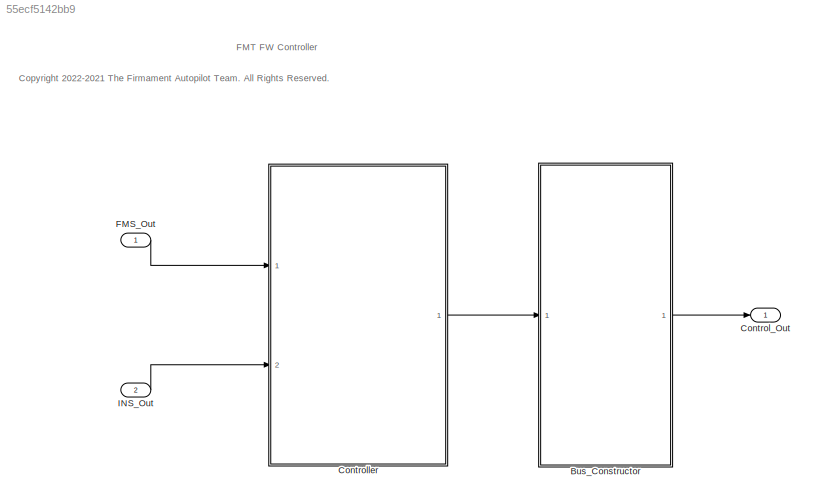
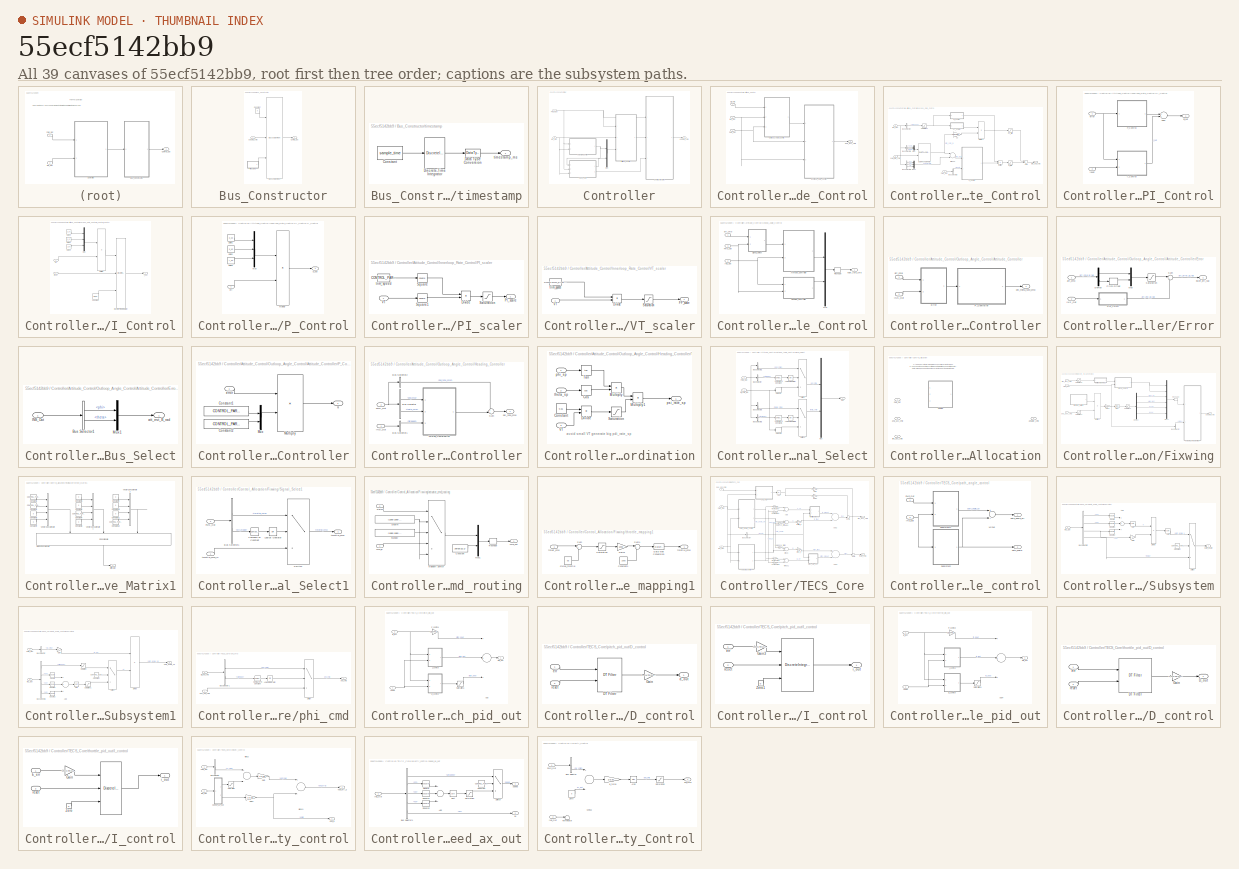
[diagram: thumbnail index - all 39 canvases of the model, root first then tree order]
MODEL slx_55ecf5142bb9
KIND model
CONFIG AbsTol = auto
CONFIG EnableMultiTasking = off
CONFIG FixedStep = control_dt
CONFIG MaxStep = auto
CONFIG MinStep = auto
CONFIG RelTol = 1e-3
CONFIG SampleTimeConstraint = Unconstrained
CONFIG Solver = FixedStepDiscrete
CONFIG SolverName = FixedStepDiscrete
CONFIG StartTime = 0.0
CONFIG StopTime = 10.0
BLOCK [SubSystem] Bus_Constructor
  Ports = [1, 1]
  RequestExecContextInheritance = off
BLOCK [BusAssignment] Bus_Constructor/Bus Assignment
  AssignedSignals = actuator_cmd,timestamp
  Ports = [3, 1]
BLOCK [Constant] Bus_Constructor/Constant
  OutDataTypeStr = Bus: Control_Out_Bus
  Value = 0
BLOCK [Outport] Bus_Constructor/Control_Out
  IconDisplay = Port number
BLOCK [Inport] Bus_Constructor/actuator_cmd
  IconDisplay = Port number
BLOCK [SubSystem] Bus_Constructor/timestamp
  Ports = [0, 1]
  RequestExecContextInheritance = off
BLOCK [Constant] Bus_Constructor/timestamp/Constant
  Value = sample_time
BLOCK [DataTypeConversion] Bus_Constructor/timestamp/Data Type Conversion
  OutDataTypeStr = uint32
  RndMeth = Floor
  SaturateOnIntegerOverflow = off
BLOCK [DiscreteIntegrator] Bus_Constructor/timestamp/Discrete-Time Integrator
  ICPrevOutput = DiscIntNeverNeededParam
  ICPrevScaledInput = DiscIntNeverNeededParam
  InitialConditionSetting = Auto
  IntegratorMethod = Accumulation: Forward Euler
  Ports = [1, 1]
  SampleTime = -1
BLOCK [Outport] Bus_Constructor/timestamp/timestamp_ms
  IconDisplay = Port number
BLOCK [Outport] Control_Out
  IconDisplay = Port number
  OutDataTypeStr = Bus: Control_Out_Bus
BLOCK [SubSystem] Controller
  Ports = [2, 1]
  RequestExecContextInheritance = off
BLOCK [SubSystem] Controller/Attitude_Control
  Ports = [3, 1]
  RequestExecContextInheritance = off
BLOCK [Inport] Controller/Attitude_Control/FMS_Out
  IconDisplay = Port number
BLOCK [Inport] Controller/Attitude_Control/INS_Out
  IconDisplay = Port number
  Port = 2
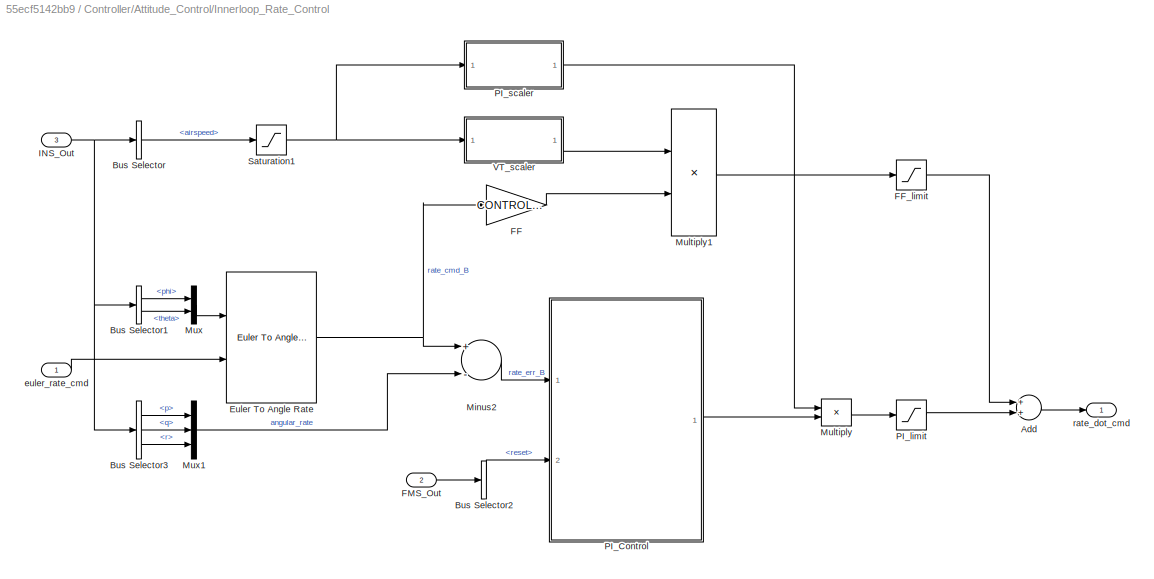
BLOCK [SubSystem] Controller/Attitude_Control/Innerloop_Rate_Control
  Ports = [3, 1]
  RequestExecContextInheritance = off
BLOCK [Sum] Controller/Attitude_Control/Innerloop_Rate_Control/Add
  InputSameDT = off
  OutDataTypeStr = Inherit: Inherit via internal rule
  Ports = [2, 1]
  SaturateOnIntegerOverflow = off
BLOCK [BusSelector] Controller/Attitude_Control/Innerloop_Rate_Control/Bus Selector
  OutputAsBus = off
  OutputSignals = airspeed
  Ports = [1, 1]
BLOCK [BusSelector] Controller/Attitude_Control/Innerloop_Rate_Control/Bus Selector1
  OutputAsBus = off
  OutputSignals = phi,theta
  Ports = [1, 2]
BLOCK [BusSelector] Controller/Attitude_Control/Innerloop_Rate_Control/Bus Selector2
  OutputAsBus = off
  OutputSignals = reset
  Ports = [1, 1]
BLOCK [BusSelector] Controller/Attitude_Control/Innerloop_Rate_Control/Bus Selector3
  OutputAsBus = off
  OutputSignals = p,q,r
  Ports = [1, 3]
BLOCK [Reference] Controller/Attitude_Control/Innerloop_Rate_Control/Euler To Angle Rate  REF=FMT_Model_Lib/Math/Euler To Angle Rate
  Ports = [2, 1]
  SourceBlock = FMT_Model_Lib/Math/Euler To Angle Rate
  SourceProductName = FMT Toolbox
  SourceType = Euler Rate to Angle Rate
BLOCK [Gain] Controller/Attitude_Control/Innerloop_Rate_Control/FF
  Gain = CONTROL_PARAM.FW_FF
  Multiplication = Matrix(K*u)
  OutDataTypeStr = Inherit: Inherit via internal rule
  ParamDataTypeStr = Inherit: Inherit via internal rule
  SaturateOnIntegerOverflow = off
BLOCK [Saturate] Controller/Attitude_Control/Innerloop_Rate_Control/FF_limit
  InputPortMap = u0
  LowerLimit = -CONTROL_PARAM.FW_FF_LIMIT
  OutDataTypeStr = single
  Ports = [1, 1]
  UpperLimit = CONTROL_PARAM.FW_FF_LIMIT
BLOCK [Inport] Controller/Attitude_Control/Innerloop_Rate_Control/FMS_Out
  IconDisplay = Port number
  Port = 2
BLOCK [Inport] Controller/Attitude_Control/Innerloop_Rate_Control/INS_Out
  IconDisplay = Port number
  Port = 3
BLOCK [Sum] Controller/Attitude_Control/Innerloop_Rate_Control/Minus2
  InputSameDT = off
  Inputs = +-
  OutDataTypeStr = Inherit: Inherit via internal rule
  Ports = [2, 1]
  SaturateOnIntegerOverflow = off
BLOCK [Product] Controller/Attitude_Control/Innerloop_Rate_Control/Multiply
  InputSameDT = off
  OutDataTypeStr = Inherit: Inherit via internal rule
  Ports = [2, 1]
  RndMeth = Floor
  SaturateOnIntegerOverflow = off
BLOCK [Product] Controller/Attitude_Control/Innerloop_Rate_Control/Multiply1
  InputSameDT = off
  OutDataTypeStr = Inherit: Inherit via internal rule
  Ports = [2, 1]
  RndMeth = Floor
  SaturateOnIntegerOverflow = off
BLOCK [Mux] Controller/Attitude_Control/Innerloop_Rate_Control/Mux
  DisplayOption = bar
  Inputs = 2
  Ports = [2, 1]
BLOCK [Mux] Controller/Attitude_Control/Innerloop_Rate_Control/Mux1
  DisplayOption = bar
  Inputs = 3
  Ports = [3, 1]
BLOCK [SubSystem] Controller/Attitude_Control/Innerloop_Rate_Control/PI_Control
  Ports = [2, 1]
  RequestExecContextInheritance = off
BLOCK [Sum] Controller/Attitude_Control/Innerloop_Rate_Control/PI_Control/Add1
  InputSameDT = off
  OutDataTypeStr = Inherit: Inherit via internal rule
  Ports = [2, 1]
  SaturateOnIntegerOverflow = off
BLOCK [SubSystem] Controller/Attitude_Control/Innerloop_Rate_Control/PI_Control/I_Control
  Ports = [2, 1]
  RequestExecContextInheritance = off
BLOCK [Constant] Controller/Attitude_Control/Innerloop_Rate_Control/PI_Control/I_Control/Constant
  OutDataTypeStr = single
  Value = [0;0;0]
BLOCK [DiscreteIntegrator] Controller/Attitude_Control/Innerloop_Rate_Control/PI_Control/I_Control/Discrete-Time Integrator
  ExternalReset = level
  ICPrevOutput = DiscIntNeverNeededParam
  ICPrevScaledInput = DiscIntNeverNeededParam
  InitialConditionSetting = Auto
  InitialConditionSource = external
  LimitOutput = on
  LowerSaturationLimit = min_i
  Ports = [3, 1]
  SampleTime = -1
  UpperSaturationLimit = max_i
BLOCK [Product] Controller/Attitude_Control/Innerloop_Rate_Control/PI_Control/I_Control/Multiply
  InputSameDT = off
  Ports = [2, 1]
  RndMeth = Floor
  SaturateOnIntegerOverflow = off
BLOCK [Mux] Controller/Attitude_Control/Innerloop_Rate_Control/PI_Control/I_Control/Mux
  DisplayOption = bar
  Inputs = 3
  Ports = [3, 1]
BLOCK [Inport] Controller/Attitude_Control/Innerloop_Rate_Control/PI_Control/I_Control/err
  IconDisplay = Port number
BLOCK [Constant] Controller/Attitude_Control/Innerloop_Rate_Control/PI_Control/I_Control/gain1
  OutDataTypeStr = single
  Value = p_ki
BLOCK [Constant] Controller/Attitude_Control/Innerloop_Rate_Control/PI_Control/I_Control/gain2
  OutDataTypeStr = single
  Value = q_ki
BLOCK [Constant] Controller/Attitude_Control/Innerloop_Rate_Control/PI_Control/I_Control/gain3
  OutDataTypeStr = single
  Value = r_ki
BLOCK [Outport] Controller/Attitude_Control/Innerloop_Rate_Control/PI_Control/I_Control/i_out
  IconDisplay = Port number
BLOCK [Inport] Controller/Attitude_Control/Innerloop_Rate_Control/PI_Control/I_Control/reset
  IconDisplay = Port number
  Port = 2
BLOCK [SubSystem] Controller/Attitude_Control/Innerloop_Rate_Control/PI_Control/P_Control
  Ports = [1, 1]
  RequestExecContextInheritance = off
BLOCK [Product] Controller/Attitude_Control/Innerloop_Rate_Control/PI_Control/P_Control/Multiply
  InputSameDT = off
  Ports = [2, 1]
  RndMeth = Floor
  SaturateOnIntegerOverflow = off
BLOCK [Mux] Controller/Attitude_Control/Innerloop_Rate_Control/PI_Control/P_Control/Mux
  DisplayOption = bar
  Inputs = 3
  Ports = [3, 1]
BLOCK [Inport] Controller/Attitude_Control/Innerloop_Rate_Control/PI_Control/P_Control/err
  IconDisplay = Port number
BLOCK [Constant] Controller/Attitude_Control/Innerloop_Rate_Control/PI_Control/P_Control/gain1
  OutDataTypeStr = single
  Value = p_kp
BLOCK [Constant] Controller/Attitude_Control/Innerloop_Rate_Control/PI_Control/P_Control/gain2
  OutDataTypeStr = single
  Value = q_kp
BLOCK [Constant] Controller/Attitude_Control/Innerloop_Rate_Control/PI_Control/P_Control/gain3
  OutDataTypeStr = single
  Value = r_kp
BLOCK [Outport] Controller/Attitude_Control/Innerloop_Rate_Control/PI_Control/P_Control/p_out
  IconDisplay = Port number
BLOCK [Inport] Controller/Attitude_Control/Innerloop_Rate_Control/PI_Control/error
  IconDisplay = Port number
BLOCK [Outport] Controller/Attitude_Control/Innerloop_Rate_Control/PI_Control/pi_out
  IconDisplay = Port number
BLOCK [Inport] Controller/Attitude_Control/Innerloop_Rate_Control/PI_Control/reset
  IconDisplay = Port number
  Port = 2
BLOCK [Saturate] Controller/Attitude_Control/Innerloop_Rate_Control/PI_limit
  InputPortMap = u0
  LowerLimit = -CONTROL_PARAM.FW_PI_LIMIT
  Ports = [1, 1]
  UpperLimit = CONTROL_PARAM.FW_PI_LIMIT
BLOCK [SubSystem] Controller/Attitude_Control/Innerloop_Rate_Control/PI_scaler
  Ports = [1, 1]
  RequestExecContextInheritance = off
BLOCK [Product] Controller/Attitude_Control/Innerloop_Rate_Control/PI_scaler/Divide
  InputSameDT = off
  Inputs = */
  OutDataTypeStr = Inherit: Inherit via internal rule
  Ports = [2, 1]
  RndMeth = Floor
  SaturateOnIntegerOverflow = off
BLOCK [Outport] Controller/Attitude_Control/Innerloop_Rate_Control/PI_scaler/PI_scale
  IconDisplay = Port number
BLOCK [Saturate] Controller/Attitude_Control/Innerloop_Rate_Control/PI_scaler/Saturation
  InputPortMap = u0
  LowerLimit = 0
  Ports = [1, 1]
  UpperLimit = 1
BLOCK [Math] Controller/Attitude_Control/Innerloop_Rate_Control/PI_scaler/Square
  Operator = square
  Ports = [1, 1]
BLOCK [Math] Controller/Attitude_Control/Innerloop_Rate_Control/PI_scaler/Square1
  Operator = square
  Ports = [1, 1]
BLOCK [Inport] Controller/Attitude_Control/Innerloop_Rate_Control/PI_scaler/VT
  IconDisplay = Port number
BLOCK [Constant] Controller/Attitude_Control/Innerloop_Rate_Control/PI_scaler/trim_speed
  Value = CONTROL_PARAM.FW_AIRSPEED_TRIM
BLOCK [Saturate] Controller/Attitude_Control/Innerloop_Rate_Control/Saturation1
  InputPortMap = u0
  LowerLimit = 0.1
  Ports = [1, 1]
  UpperLimit = 999
BLOCK [SubSystem] Controller/Attitude_Control/Innerloop_Rate_Control/VT_scaler
  Ports = [1, 1]
  RequestExecContextInheritance = off
BLOCK [Product] Controller/Attitude_Control/Innerloop_Rate_Control/VT_scaler/Divide
  InputSameDT = off
  Inputs = */
  OutDataTypeStr = Inherit: Inherit via internal rule
  Ports = [2, 1]
  RndMeth = Floor
  SaturateOnIntegerOverflow = off
BLOCK [Outport] Controller/Attitude_Control/Innerloop_Rate_Control/VT_scaler/FF_scale
  IconDisplay = Port number
BLOCK [Saturate] Controller/Attitude_Control/Innerloop_Rate_Control/VT_scaler/Saturation
  InputPortMap = u0
  LowerLimit = 0
  Ports = [1, 1]
  UpperLimit = 1
BLOCK [Inport] Controller/Attitude_Control/Innerloop_Rate_Control/VT_scaler/VT
  IconDisplay = Port number
BLOCK [Constant] Controller/Attitude_Control/Innerloop_Rate_Control/VT_scaler/trim_speed
  Value = CONTROL_PARAM.FW_AIRSPEED_TRIM
BLOCK [Inport] Controller/Attitude_Control/Innerloop_Rate_Control/euler_rate_cmd
  IconDisplay = Port number
BLOCK [Outport] Controller/Attitude_Control/Innerloop_Rate_Control/rate_dot_cmd
  IconDisplay = Port number
BLOCK [SubSystem] Controller/Attitude_Control/Outloop_Angle_Control
  Ports = [3, 1]
  RequestExecContextInheritance = off
BLOCK [SubSystem] Controller/Attitude_Control/Outloop_Angle_Control/Attitude_Controller
  Ports = [2, 1]
  RequestExecContextInheritance = off
BLOCK [SubSystem] Controller/Attitude_Control/Outloop_Angle_Control/Attitude_Controller/Error
  Ports = [2, 1]
  RequestExecContextInheritance = off
BLOCK [SubSystem] Controller/Attitude_Control/Outloop_Angle_Control/Attitude_Controller/Error/Bus_Select
  Ports = [1, 1]
  RequestExecContextInheritance = off
BLOCK [BusSelector] Controller/Attitude_Control/Outloop_Angle_Control/Attitude_Controller/Error/Bus_Select/Bus Selector1
  OutputAsBus = off
  OutputSignals = phi,theta
  Ports = [1, 2]
BLOCK [Inport] Controller/Attitude_Control/Outloop_Angle_Control/Attitude_Controller/Error/Bus_Select/INS_Out
  IconDisplay = Port number
BLOCK [Mux] Controller/Attitude_Control/Outloop_Angle_Control/Attitude_Controller/Error/Bus_Select/Mux1
  DisplayOption = bar
  Inputs = 2
  Ports = [2, 1]
BLOCK [Outport] Controller/Attitude_Control/Outloop_Angle_Control/Attitude_Controller/Error/Bus_Select/att_est_B_rad
  IconDisplay = Port number
BLOCK [Demux] Controller/Attitude_Control/Outloop_Angle_Control/Attitude_Controller/Error/Demux
  DisplayOption = bar
  Outputs = 2
  Ports = [1, 2]
BLOCK [Inport] Controller/Attitude_Control/Outloop_Angle_Control/Attitude_Controller/Error/INS_Out
  IconDisplay = Port number
  Port = 2
BLOCK [Mux] Controller/Attitude_Control/Outloop_Angle_Control/Attitude_Controller/Error/Mux
  DisplayOption = bar
  Inputs = 2
  Ports = [2, 1]
BLOCK [Bias] Controller/Attitude_Control/Outloop_Angle_Control/Attitude_Controller/Error/Pitch Offset
  Bias = CONTROL_PARAM.FW_PITCH_OFFSET
  SaturateOnIntegerOverflow = off
BLOCK [Saturate] Controller/Attitude_Control/Outloop_Angle_Control/Attitude_Controller/Error/Saturation
  InputPortMap = u0
  LowerLimit = -CONTROL_PARAM.ROLL_PITCH_CMD_LIM
  Ports = [1, 1]
  UpperLimit = CONTROL_PARAM.ROLL_PITCH_CMD_LIM
BLOCK [Sum] Controller/Attitude_Control/Outloop_Angle_Control/Attitude_Controller/Error/Sum
  IconShape = round
  InputSameDT = off
  Inputs = |+-
  OutDataTypeStr = Inherit: Inherit via internal rule
  Ports = [2, 1]
  SaturateOnIntegerOverflow = off
BLOCK [Inport] Controller/Attitude_Control/Outloop_Angle_Control/Attitude_Controller/Error/att_cmd
  IconDisplay = Port number
BLOCK [Outport] Controller/Attitude_Control/Outloop_Angle_Control/Attitude_Controller/Error/euler_err_rad
  IconDisplay = Port number
BLOCK [Inport] Controller/Attitude_Control/Outloop_Angle_Control/Attitude_Controller/INS_Out
  IconDisplay = Port number
  Port = 2
BLOCK [SubSystem] Controller/Attitude_Control/Outloop_Angle_Control/Attitude_Controller/P_Controller
  Ports = [1, 1]
  RequestExecContextInheritance = off
BLOCK [Constant] Controller/Attitude_Control/Outloop_Angle_Control/Attitude_Controller/P_Controller/Constant1
  Value = CONTROL_PARAM.ROLL_P
BLOCK [Constant] Controller/Attitude_Control/Outloop_Angle_Control/Attitude_Controller/P_Controller/Constant2
  Value = CONTROL_PARAM.PITCH_P
BLOCK [Product] Controller/Attitude_Control/Outloop_Angle_Control/Attitude_Controller/P_Controller/Multiply
  InputSameDT = off
  OutDataTypeStr = Inherit: Inherit via internal rule
  Ports = [2, 1]
  RndMeth = Floor
  SaturateOnIntegerOverflow = off
BLOCK [Mux] Controller/Attitude_Control/Outloop_Angle_Control/Attitude_Controller/P_Controller/Mux
  DisplayOption = bar
  Inputs = 2
  Ports = [2, 1]
BLOCK [Inport] Controller/Attitude_Control/Outloop_Angle_Control/Attitude_Controller/P_Controller/error
  IconDisplay = Port number
BLOCK [Outport] Controller/Attitude_Control/Outloop_Angle_Control/Attitude_Controller/P_Controller/u
  IconDisplay = Port number
BLOCK [Inport] Controller/Attitude_Control/Outloop_Angle_Control/Attitude_Controller/att_cmd
  IconDisplay = Port number
BLOCK [Outport] Controller/Attitude_Control/Outloop_Angle_Control/Attitude_Controller/phi_theta_rate_cmd
  IconDisplay = Port number
BLOCK [Inport] Controller/Attitude_Control/Outloop_Angle_Control/FMS_Out
  IconDisplay = Port number
  Port = 3
BLOCK [SubSystem] Controller/Attitude_Control/Outloop_Angle_Control/Heading_Controller
  Ports = [2, 1]
  RequestExecContextInheritance = off
BLOCK [BusSelector] Controller/Attitude_Control/Outloop_Angle_Control/Heading_Controller/Bus Selector
  OutputAsBus = off
  OutputSignals = phi_cmd,theta_cmd
  Ports = [1, 2]
BLOCK [BusSelector] Controller/Attitude_Control/Outloop_Angle_Control/Heading_Controller/Bus Selector1
  OutputAsBus = off
  OutputSignals = airspeed
  Ports = [1, 1]
BLOCK [BusSelector] Controller/Attitude_Control/Outloop_Angle_Control/Heading_Controller/Bus Selector2
  OutputAsBus = off
  OutputSignals = psi_rate_cmd
  Ports = [1, 1]
BLOCK [Inport] Controller/Attitude_Control/Outloop_Angle_Control/Heading_Controller/FMS_Out
  IconDisplay = Port number
  Port = 2
BLOCK [Inport] Controller/Attitude_Control/Outloop_Angle_Control/Heading_Controller/INS_Out
  IconDisplay = Port number
BLOCK [Sum] Controller/Attitude_Control/Outloop_Angle_Control/Heading_Controller/Sum
  IconShape = round
  InputSameDT = off
  Inputs = ++|
  OutDataTypeStr = Inherit: Inherit via internal rule
  Ports = [2, 1]
  SaturateOnIntegerOverflow = off
BLOCK [SubSystem] Controller/Attitude_Control/Outloop_Angle_Control/Heading_Controller/Turning_Coordination
  Ports = [3, 1]
  RequestExecContextInheritance = off
BLOCK [Constant] Controller/Attitude_Control/Outloop_Angle_Control/Heading_Controller/Turning_Coordination/Constant
  OutDataTypeStr = single
  Value = 9.81
BLOCK [Trigonometry] Controller/Attitude_Control/Outloop_Angle_Control/Heading_Controller/Turning_Coordination/Cos
  Operator = cos
  Ports = [1, 1]
BLOCK [Product] Controller/Attitude_Control/Outloop_Angle_Control/Heading_Controller/Turning_Coordination/Divide
  InputSameDT = off
  Inputs = */
  OutDataTypeStr = Inherit: Inherit via internal rule
  Ports = [2, 1]
  RndMeth = Floor
  SaturateOnIntegerOverflow = off
BLOCK [Product] Controller/Attitude_Control/Outloop_Angle_Control/Heading_Controller/Turning_Coordination/Multiply
  InputSameDT = off
  OutDataTypeStr = Inherit: Inherit via internal rule
  Ports = [2, 1]
  RndMeth = Floor
  SaturateOnIntegerOverflow = off
BLOCK [Product] Controller/Attitude_Control/Outloop_Angle_Control/Heading_Controller/Turning_Coordination/Multiply1
  InputSameDT = off
  OutDataTypeStr = Inherit: Inherit via internal rule
  Ports = [2, 1]
  RndMeth = Floor
  SaturateOnIntegerOverflow = off
BLOCK [Saturate] Controller/Attitude_Control/Outloop_Angle_Control/Heading_Controller/Turning_Coordination/Saturation
  InputPortMap = u0
  LowerLimit = 0
  Ports = [1, 1]
  UpperLimit = 1
BLOCK [Trigonometry] Controller/Attitude_Control/Outloop_Angle_Control/Heading_Controller/Turning_Coordination/Tan
  Operator = tan
  Ports = [1, 1]
BLOCK [Inport] Controller/Attitude_Control/Outloop_Angle_Control/Heading_Controller/Turning_Coordination/VT
  IconDisplay = Port number
  Port = 3
BLOCK [Inport] Controller/Attitude_Control/Outloop_Angle_Control/Heading_Controller/Turning_Coordination/phi_sp
  IconDisplay = Port number
BLOCK [Outport] Controller/Attitude_Control/Outloop_Angle_Control/Heading_Controller/Turning_Coordination/psi_rate_sp
  IconDisplay = Port number
BLOCK [Inport] Controller/Attitude_Control/Outloop_Angle_Control/Heading_Controller/Turning_Coordination/theta_sp
  IconDisplay = Port number
  Port = 2
BLOCK [Outport] Controller/Attitude_Control/Outloop_Angle_Control/Heading_Controller/psi_rate_cmd
  IconDisplay = Port number
BLOCK [Inport] Controller/Attitude_Control/Outloop_Angle_Control/INS_Out
  IconDisplay = Port number
  Port = 2
BLOCK [Mux] Controller/Attitude_Control/Outloop_Angle_Control/Mux
  DisplayOption = bar
  Inputs = 2
  Ports = [2, 1]
BLOCK [Reshape] Controller/Attitude_Control/Outloop_Angle_Control/Reshape
  OutputDimensionality = Column vector (2-D)
  Ports = [1, 1]
BLOCK [SubSystem] Controller/Attitude_Control/Outloop_Angle_Control/Signal_Select
  Ports = [2, 1]
  RequestExecContextInheritance = off
BLOCK [BusSelector] Controller/Attitude_Control/Outloop_Angle_Control/Signal_Select/Bus Selector
  OutputAsBus = off
  OutputSignals = ctrl_mode
  Ports = [1, 1]
BLOCK [BusSelector] Controller/Attitude_Control/Outloop_Angle_Control/Signal_Select/Bus Selector1
  OutputAsBus = off
  OutputSignals = phi_cmd
  Ports = [1, 1]
BLOCK [BusSelector] Controller/Attitude_Control/Outloop_Angle_Control/Signal_Select/Bus Selector2
  OutputAsBus = off
  OutputSignals = ctrl_mode
  Ports = [1, 1]
BLOCK [BusSelector] Controller/Attitude_Control/Outloop_Angle_Control/Signal_Select/Bus Selector3
  OutputAsBus = off
  OutputSignals = theta_cmd
  Ports = [1, 1]
BLOCK [Reference] Controller/Attitude_Control/Outloop_Angle_Control/Signal_Select/Compare To Constant  REF=simulink/Logic and Bit
Operations/Compare
To Constant
  Ports = [1, 1]
  SourceBlock = simulink/Logic and Bit\nOperations/Compare\nTo Constant
  SourceProductBaseCode = SL
  SourceProductName = Simulink
  SourceType = Compare To Constant
BLOCK [Reference] Controller/Attitude_Control/Outloop_Angle_Control/Signal_Select/Compare To Constant1  REF=simulink/Logic and Bit
Operations/Compare
To Constant
  Ports = [1, 1]
  SourceBlock = simulink/Logic and Bit\nOperations/Compare\nTo Constant
  SourceProductBaseCode = SL
  SourceProductName = Simulink
  SourceType = Compare To Constant
BLOCK [Inport] Controller/Attitude_Control/Outloop_Angle_Control/Signal_Select/FMS_Out
  IconDisplay = Port number
  Port = 2
BLOCK [Logic] Controller/Attitude_Control/Outloop_Angle_Control/Signal_Select/Logical Operator
  AllPortsSameDT = off
  Inputs = 1
  Operator = OR
  OutDataTypeStr = boolean
  Ports = [1, 1]
BLOCK [Logic] Controller/Attitude_Control/Outloop_Angle_Control/Signal_Select/Logical Operator1
  AllPortsSameDT = off
  Inputs = 1
  Operator = OR
  OutDataTypeStr = boolean
  Ports = [1, 1]
BLOCK [Mux] Controller/Attitude_Control/Outloop_Angle_Control/Signal_Select/Mux
  DisplayOption = bar
  Inputs = 2
  Ports = [2, 1]
BLOCK [Selector] Controller/Attitude_Control/Outloop_Angle_Control/Signal_Select/Selector
  IndexOptions = Index vector (dialog)
  Indices = 1
  InputPortWidth = 2
  OutputSizes = 1
  Ports = [1, 1]
BLOCK [Selector] Controller/Attitude_Control/Outloop_Angle_Control/Signal_Select/Selector1
  IndexOptions = Index vector (dialog)
  Indices = 2
  InputPortWidth = 2
  OutputSizes = 1
  Ports = [1, 1]
BLOCK [Switch] Controller/Attitude_Control/Outloop_Angle_Control/Signal_Select/Switch
  Criteria = u2 > Threshold
  InputSameDT = off
  SaturateOnIntegerOverflow = off
BLOCK [Switch] Controller/Attitude_Control/Outloop_Angle_Control/Signal_Select/Switch1
  Criteria = u2 > Threshold
  InputSameDT = off
  SaturateOnIntegerOverflow = off
BLOCK [Inport] Controller/Attitude_Control/Outloop_Angle_Control/Signal_Select/att_cmd_rad
  IconDisplay = Port number
BLOCK [Outport] Controller/Attitude_Control/Outloop_Angle_Control/Signal_Select/out
  IconDisplay = Port number
BLOCK [Inport] Controller/Attitude_Control/Outloop_Angle_Control/att_cmd
  IconDisplay = Port number
BLOCK [Outport] Controller/Attitude_Control/Outloop_Angle_Control/euler_rate_cmd
  IconDisplay = Port number
BLOCK [Outport] Controller/Attitude_Control/ang_acc_cmd
  IconDisplay = Port number
BLOCK [Inport] Controller/Attitude_Control/att_cmd
  IconDisplay = Port number
  Port = 3
BLOCK [SubSystem] Controller/Control_Allocation
  GeneratePreprocessorConditionals = on
  Ports = [3, 1]
  RequestExecContextInheritance = off
  Variant = on
BLOCK [Inport] Controller/Control_Allocation/FMS_Out
  IconDisplay = Port number
BLOCK [SubSystem] Controller/Control_Allocation/Fixwing
  Ports = [3, 1]
  RequestExecContextInheritance = off
  TreatAsAtomicUnit = on
  VariantControl = AIRFRAME==1
BLOCK [Bias] Controller/Control_Allocation/Fixwing/Bias
  Bias = 1500
  SaturateOnIntegerOverflow = off
BLOCK [BusSelector] Controller/Control_Allocation/Fixwing/Bus Selector
  OutputAsBus = off
  OutputSignals = status
  Ports = [1, 1]
BLOCK [Demux] Controller/Control_Allocation/Fixwing/Demux
  DisplayOption = bar
  Ports = [1, 4]
BLOCK [SubSystem] Controller/Control_Allocation/Fixwing/Effective_Matrix1
  Ports = [0, 1]
  RequestExecContextInheritance = off
BLOCK [Constant] Controller/Control_Allocation/Fixwing/Effective_Matrix1/Constant1
  OutDataTypeStr = single
  Value = CONTROL_PARAM.FW_ROLL_EFFC
BLOCK [Constant] Controller/Control_Allocation/Fixwing/Effective_Matrix1/Constant10
  OutDataTypeStr = single
  Value = 0
BLOCK [Constant] Controller/Control_Allocation/Fixwing/Effective_Matrix1/Constant11
  OutDataTypeStr = single
  Value = 0
BLOCK [Constant] Controller/Control_Allocation/Fixwing/Effective_Matrix1/Constant12
  OutDataTypeStr = single
  Value = CONTROL_PARAM.FW_YAW_EFFC
BLOCK [Constant] Controller/Control_Allocation/Fixwing/Effective_Matrix1/Constant2
  OutDataTypeStr = single
  Value = CONTROL_PARAM.FW_ROLL_EFFC
BLOCK [Constant] Controller/Control_Allocation/Fixwing/Effective_Matrix1/Constant3
  OutDataTypeStr = single
  Value = 0
BLOCK [Constant] Controller/Control_Allocation/Fixwing/Effective_Matrix1/Constant4
  OutDataTypeStr = single
  Value = 0
BLOCK [Constant] Controller/Control_Allocation/Fixwing/Effective_Matrix1/Constant5
  OutDataTypeStr = single
  Value = 0
BLOCK [Constant] Controller/Control_Allocation/Fixwing/Effective_Matrix1/Constant6
  OutDataTypeStr = single
  Value = 0
BLOCK [Constant] Controller/Control_Allocation/Fixwing/Effective_Matrix1/Constant7
  OutDataTypeStr = single
  Value = CONTROL_PARAM.FW_PITCH_EFFC
BLOCK [Constant] Controller/Control_Allocation/Fixwing/Effective_Matrix1/Constant8
  OutDataTypeStr = single
  Value = 0
BLOCK [Constant] Controller/Control_Allocation/Fixwing/Effective_Matrix1/Constant9
  OutDataTypeStr = single
  Value = 0
BLOCK [Outport] Controller/Control_Allocation/Fixwing/Effective_Matrix1/EffecMat
  IconDisplay = Port number
BLOCK [Concatenate] Controller/Control_Allocation/Fixwing/Effective_Matrix1/Matrix Concatenate
  ConcatenateDimension = 2
  Mode = Multidimensional array
  NumInputs = 3
  Ports = [3, 1]
BLOCK [Concatenate] Controller/Control_Allocation/Fixwing/Effective_Matrix1/Vector Concatenate
  NumInputs = 4
  Ports = [4, 1]
BLOCK [Concatenate] Controller/Control_Allocation/Fixwing/Effective_Matrix1/Vector Concatenate1
  NumInputs = 4
  Ports = [4, 1]
BLOCK [Concatenate] Controller/Control_Allocation/Fixwing/Effective_Matrix1/Vector Concatenate2
  NumInputs = 4
  Ports = [4, 1]
BLOCK [Inport] Controller/Control_Allocation/Fixwing/FMS_Out
  IconDisplay = Port number
BLOCK [Gain] Controller/Control_Allocation/Fixwing/Gain1
  Gain = [500;500;500;500]
  SaturateOnIntegerOverflow = off
BLOCK [Product] Controller/Control_Allocation/Fixwing/Multiply1
  InputSameDT = off
  Multiplication = Matrix(*)
  Ports = [2, 1]
  RndMeth = Floor
  SaturateOnIntegerOverflow = off
BLOCK [Mux] Controller/Control_Allocation/Fixwing/Mux1
  DisplayOption = bar
  Inputs = 6
  Ports = [6, 1]
BLOCK [Reshape] Controller/Control_Allocation/Fixwing/Reshape
  OutputDimensionality = Column vector (2-D)
  OutputDimensions = [16,1]
  Ports = [1, 1]
BLOCK [Saturate] Controller/Control_Allocation/Fixwing/Saturation3
  InputPortMap = u0
  LowerLimit = 1000
  OutDataTypeStr = uint16
  Ports = [1, 1]
  UpperLimit = 2000
BLOCK [Saturate] Controller/Control_Allocation/Fixwing/Saturation4
  InputPortMap = u0
  LowerLimit = -1
  Ports = [1, 1]
  UpperLimit = 1
BLOCK [Saturate] Controller/Control_Allocation/Fixwing/Saturation5
  InputPortMap = u0
  LowerLimit = -1
  Ports = [1, 1]
  UpperLimit = 1
BLOCK [SubSystem] Controller/Control_Allocation/Fixwing/Signal_Select1
  Ports = [2, 1]
  RequestExecContextInheritance = off
BLOCK [BusSelector] Controller/Control_Allocation/Fixwing/Signal_Select1/Bus Selector1
  OutputAsBus = off
  OutputSignals = throttle_cmd,ctrl_mode
  Ports = [1, 2]
BLOCK [Reference] Controller/Control_Allocation/Fixwing/Signal_Select1/Compare To Constant  REF=simulink/Logic and Bit
Operations/Compare
To Constant
  Ports = [1, 1]
  SourceBlock = simulink/Logic and Bit\nOperations/Compare\nTo Constant
  SourceProductBaseCode = SL
  SourceProductName = Simulink
  SourceType = Compare To Constant
BLOCK [Inport] Controller/Control_Allocation/Fixwing/Signal_Select1/FMS_Out
  IconDisplay = Port number
  Port = 2
BLOCK [Logic] Controller/Control_Allocation/Fixwing/Signal_Select1/Logical Operator
  AllPortsSameDT = off
  Inputs = 1
  Operator = OR
  OutDataTypeStr = boolean
  Ports = [1, 1]
BLOCK [Switch] Controller/Control_Allocation/Fixwing/Signal_Select1/Switch
  Criteria = u2 > Threshold
  InputSameDT = off
  SaturateOnIntegerOverflow = off
BLOCK [Outport] Controller/Control_Allocation/Fixwing/Signal_Select1/throttle_cmd
  IconDisplay = Port number
BLOCK [Inport] Controller/Control_Allocation/Fixwing/Signal_Select1/throttle_cmd_in
  IconDisplay = Port number
BLOCK [Outport] Controller/Control_Allocation/Fixwing/actuator_cmd
  IconDisplay = Port number
BLOCK [SubSystem] Controller/Control_Allocation/Fixwing/actuator_cmd_routing
  Ports = [2, 1]
  RequestExecContextInheritance = off
BLOCK [Constant] Controller/Control_Allocation/Fixwing/actuator_cmd_routing/Constant
  OutDataTypeStr = uint16
  Value = zeros(10,1)
  VectorParams1D = off
BLOCK [Constant] Controller/Control_Allocation/Fixwing/actuator_cmd_routing/Disarm
  OutDataTypeStr = uint16
  Value = [1000 1000 1500 1500 1500 1500]'
  VectorParams1D = off
BLOCK [MultiPortSwitch] Controller/Control_Allocation/Fixwing/actuator_cmd_routing/Multiport Switch
  DataPortForDefault = Additional data port
  DiagnosticForDefault = None
  InputSameDT = off
  Ports = [5, 1]
  SaturateOnIntegerOverflow = off
BLOCK [Mux] Controller/Control_Allocation/Fixwing/actuator_cmd_routing/Mux1
  DisplayOption = bar
  Inputs = 2
  Ports = [2, 1]
BLOCK [Reshape] Controller/Control_Allocation/Fixwing/actuator_cmd_routing/Reshape
  OutputDimensionality = Customize
  OutputDimensions = [16,1]
  Ports = [1, 1]
BLOCK [Constant] Controller/Control_Allocation/Fixwing/actuator_cmd_routing/Standby
  OutDataTypeStr = uint16
  Value = [1050 1050 1500 1500 1500 1500]'
  VectorParams1D = off
BLOCK [Inport] Controller/Control_Allocation/Fixwing/actuator_cmd_routing/cmd_in
  IconDisplay = Port number
BLOCK [Outport] Controller/Control_Allocation/Fixwing/actuator_cmd_routing/cmd_out
  IconDisplay = Port number
BLOCK [Inport] Controller/Control_Allocation/Fixwing/actuator_cmd_routing/status
  IconDisplay = Port number
  Port = 2
BLOCK [Inport] Controller/Control_Allocation/Fixwing/ang_acc_cmd
  IconDisplay = Port number
  Port = 2
BLOCK [Inport] Controller/Control_Allocation/Fixwing/line_acc_cmd
  IconDisplay = Port number
  Port = 3
BLOCK [SubSystem] Controller/Control_Allocation/Fixwing/throttle_mapping1
  Ports = [1, 1]
  RequestExecContextInheritance = off
BLOCK [Constant] Controller/Control_Allocation/Fixwing/throttle_mapping1/Constant1
  OutDataTypeStr = uint32
  Value = 1000
BLOCK [DataTypeConversion] Controller/Control_Allocation/Fixwing/throttle_mapping1/Data Type Conversion
  OutDataTypeStr = uint16
  RndMeth = Floor
  SaturateOnIntegerOverflow = off
BLOCK [Gain] Controller/Control_Allocation/Fixwing/throttle_mapping1/Gain1
  Gain = 1000
  OutDataTypeStr = uint32
  ParamDataTypeStr = Inherit: Inherit via internal rule
  SaturateOnIntegerOverflow = off
BLOCK [Saturate] Controller/Control_Allocation/Fixwing/throttle_mapping1/Saturation
  InputPortMap = u0
  LowerLimit = 0
  Ports = [1, 1]
  UpperLimit = 1
BLOCK [Sum] Controller/Control_Allocation/Fixwing/throttle_mapping1/Sum
  IconShape = round
  InputSameDT = off
  Inputs = |++
  OutDataTypeStr = Inherit: Inherit via internal rule
  Ports = [2, 1]
  SaturateOnIntegerOverflow = off
BLOCK [Sum] Controller/Control_Allocation/Fixwing/throttle_mapping1/Sum1
  IconShape = round
  InputSameDT = off
  Inputs = |++
  OutDataTypeStr = Inherit: Inherit via internal rule
  Ports = [2, 1]
  SaturateOnIntegerOverflow = off
BLOCK [Constant] Controller/Control_Allocation/Fixwing/throttle_mapping1/cruise_throttle
  OutDataTypeStr = Inherit: Inherit via back propagation
  Value = 0.5
BLOCK [Outport] Controller/Control_Allocation/Fixwing/throttle_mapping1/throttle_cmd
  IconDisplay = Port number
BLOCK [Inport] Controller/Control_Allocation/Fixwing/throttle_mapping1/thrust_cmd
  IconDisplay = Port number
BLOCK [Outport] Controller/Control_Allocation/actuator_cmd
  IconDisplay = Port number
BLOCK [Inport] Controller/Control_Allocation/ang_acc_cmd
  IconDisplay = Port number
  Port = 2
BLOCK [Inport] Controller/Control_Allocation/line_acc_cmd
  IconDisplay = Port number
  Port = 3
BLOCK [Inport] Controller/FMS_Out
  IconDisplay = Port number
BLOCK [Inport] Controller/INS_Out
  IconDisplay = Port number
  Port = 2
BLOCK [Mux] Controller/Mux
  DisplayOption = bar
  Inputs = 2
  Ports = [2, 1]
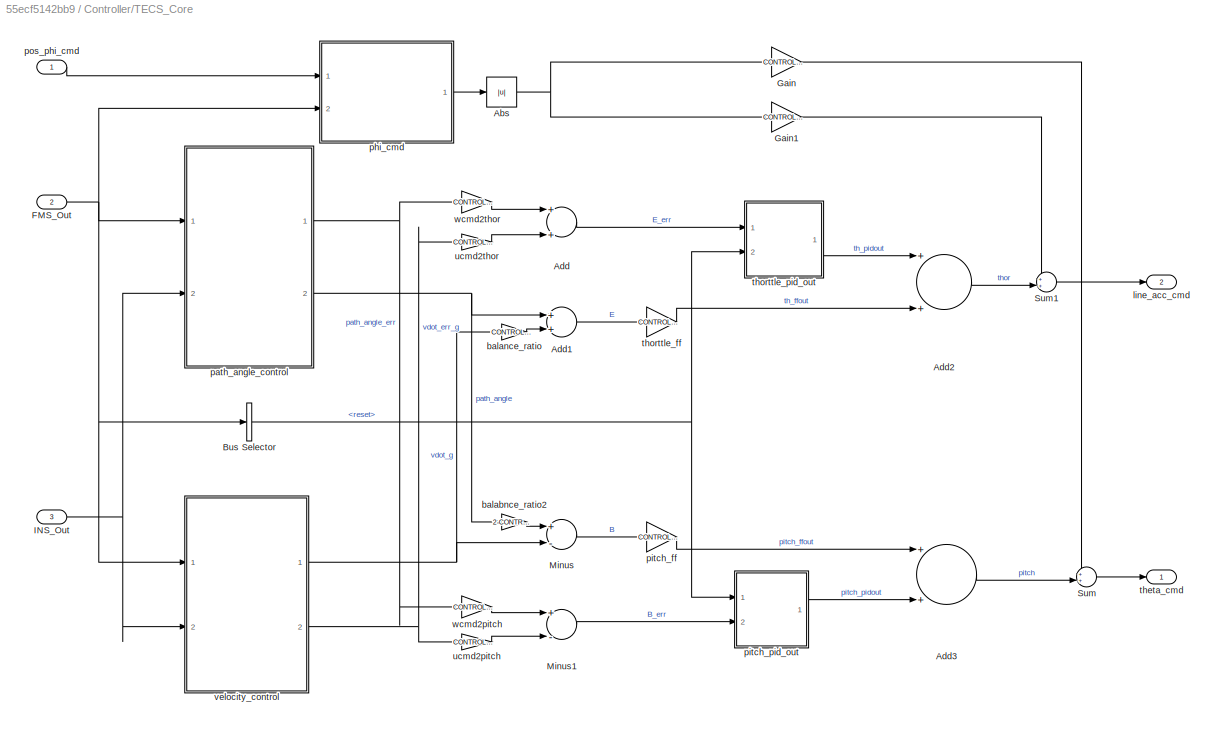
BLOCK [SubSystem] Controller/TECS_Core
  Ports = [3, 2]
  RequestExecContextInheritance = off
BLOCK [Abs] Controller/TECS_Core/Abs
  SaturateOnIntegerOverflow = off
BLOCK [Sum] Controller/TECS_Core/Add
  InputSameDT = off
  OutDataTypeStr = Inherit: Inherit via internal rule
  Ports = [2, 1]
  SaturateOnIntegerOverflow = off
BLOCK [Sum] Controller/TECS_Core/Add1
  InputSameDT = off
  OutDataTypeStr = Inherit: Inherit via internal rule
  Ports = [2, 1]
  SaturateOnIntegerOverflow = off
BLOCK [Sum] Controller/TECS_Core/Add2
  InputSameDT = off
  OutDataTypeStr = Inherit: Inherit via internal rule
  Ports = [2, 1]
  SaturateOnIntegerOverflow = off
BLOCK [Sum] Controller/TECS_Core/Add3
  InputSameDT = off
  OutDataTypeStr = Inherit: Inherit via internal rule
  Ports = [2, 1]
  SaturateOnIntegerOverflow = off
BLOCK [BusSelector] Controller/TECS_Core/Bus Selector
  OutputAsBus = off
  OutputSignals = reset
  Ports = [1, 1]
BLOCK [Inport] Controller/TECS_Core/FMS_Out
  IconDisplay = Port number
  Port = 2
BLOCK [Gain] Controller/TECS_Core/Gain
  Gain = CONTROL_PARAM.FW_TECS_R2P
  OutDataTypeStr = Inherit: Inherit via internal rule
  ParamDataTypeStr = Inherit: Inherit via internal rule
  SaturateOnIntegerOverflow = off
BLOCK [Gain] Controller/TECS_Core/Gain1
  Gain = CONTROL_PARAM.FW_TECS_R2T
  OutDataTypeStr = Inherit: Inherit via internal rule
  ParamDataTypeStr = Inherit: Inherit via internal rule
  SaturateOnIntegerOverflow = off
BLOCK [Inport] Controller/TECS_Core/INS_Out
  IconDisplay = Port number
  Port = 3
BLOCK [Sum] Controller/TECS_Core/Minus
  InputSameDT = off
  Inputs = +-
  OutDataTypeStr = Inherit: Inherit via internal rule
  Ports = [2, 1]
  SaturateOnIntegerOverflow = off
BLOCK [Sum] Controller/TECS_Core/Minus1
  InputSameDT = off
  Inputs = +-
  OutDataTypeStr = Inherit: Inherit via internal rule
  Ports = [2, 1]
  SaturateOnIntegerOverflow = off
BLOCK [Sum] Controller/TECS_Core/Sum
  IconShape = round
  InputSameDT = off
  Inputs = ++|
  OutDataTypeStr = Inherit: Inherit via internal rule
  Ports = [2, 1]
  SaturateOnIntegerOverflow = off
BLOCK [Sum] Controller/TECS_Core/Sum1
  IconShape = round
  InputSameDT = off
  Inputs = ++|
  OutDataTypeStr = Inherit: Inherit via internal rule
  Ports = [2, 1]
  SaturateOnIntegerOverflow = off
BLOCK [Gain] Controller/TECS_Core/balabnce_ratio2
  Gain = 2-CONTROL_PARAM.FW_TECS_RATIO
  OutDataTypeStr = Inherit: Inherit via internal rule
  ParamDataTypeStr = Inherit: Inherit via internal rule
  SaturateOnIntegerOverflow = off
BLOCK [Gain] Controller/TECS_Core/balance_ratio
  Gain = CONTROL_PARAM.FW_TECS_RATIO
  OutDataTypeStr = Inherit: Inherit via internal rule
  ParamDataTypeStr = Inherit: Inherit via internal rule
  SaturateOnIntegerOverflow = off
BLOCK [Outport] Controller/TECS_Core/line_acc_cmd
  IconDisplay = Port number
  Port = 2
BLOCK [SubSystem] Controller/TECS_Core/path_angle_control
  Ports = [2, 2]
  RequestExecContextInheritance = off
BLOCK [Inport] Controller/TECS_Core/path_angle_control/FMS_Out
  IconDisplay = Port number
BLOCK [Inport] Controller/TECS_Core/path_angle_control/INS_out
  IconDisplay = Port number
  Port = 2
BLOCK [Sum] Controller/TECS_Core/path_angle_control/Minus
  InputSameDT = off
  Inputs = +-
  OutDataTypeStr = Inherit: Inherit via internal rule
  Ports = [2, 1]
  SaturateOnIntegerOverflow = off
BLOCK [SubSystem] Controller/TECS_Core/path_angle_control/Subsystem
  Ports = [1, 1]
  RequestExecContextInheritance = off
BLOCK [Sum] Controller/TECS_Core/path_angle_control/Subsystem/Add
  InputSameDT = off
  Inputs = +++
  OutDataTypeStr = Inherit: Inherit via internal rule
  Ports = [3, 1]
  SaturateOnIntegerOverflow = off
BLOCK [Trigonometry] Controller/TECS_Core/path_angle_control/Subsystem/Asin
  Operator = asin
  Ports = [1, 1]
BLOCK [BusSelector] Controller/TECS_Core/path_angle_control/Subsystem/Bus Selector2
  OutputAsBus = off
  OutputSignals = vn,ve,vd,theta
  Ports = [1, 4]
BLOCK [Constant] Controller/TECS_Core/path_angle_control/Subsystem/Constant
  Value = CONTROL_PARAM.FW_TECS_ANSW
BLOCK [Product] Controller/TECS_Core/path_angle_control/Subsystem/Divide
  InputSameDT = off
  Inputs = /*
  OutDataTypeStr = Inherit: Inherit via internal rule
  Ports = [2, 1]
  RndMeth = Floor
  SaturateOnIntegerOverflow = off
BLOCK [Gain] Controller/TECS_Core/path_angle_control/Subsystem/Gain
  Gain = -1
  OutDataTypeStr = Inherit: Inherit via internal rule
  ParamDataTypeStr = Inherit: Inherit via internal rule
  SaturateOnIntegerOverflow = off
BLOCK [Inport] Controller/TECS_Core/path_angle_control/Subsystem/INS_Out
  IconDisplay = Port number
BLOCK [Sqrt] Controller/TECS_Core/path_angle_control/Subsystem/Sqrt
BLOCK [Math] Controller/TECS_Core/path_angle_control/Subsystem/Square
  Operator = square
  Ports = [1, 1]
BLOCK [Math] Controller/TECS_Core/path_angle_control/Subsystem/Square1
  Operator = square
  Ports = [1, 1]
BLOCK [Math] Controller/TECS_Core/path_angle_control/Subsystem/Square2
  Operator = square
  Ports = [1, 1]
BLOCK [Switch] Controller/TECS_Core/path_angle_control/Subsystem/Switch
  Criteria = u2 > Threshold
  InputSameDT = off
  SaturateOnIntegerOverflow = off
  Threshold = 1
BLOCK [Outport] Controller/TECS_Core/path_angle_control/Subsystem/path_angle
  IconDisplay = Port number
BLOCK [SubSystem] Controller/TECS_Core/path_angle_control/Subsystem1
  Ports = [2, 1]
  RequestExecContextInheritance = off
BLOCK [Sum] Controller/TECS_Core/path_angle_control/Subsystem1/Add
  InputSameDT = off
  Inputs = +++
  OutDataTypeStr = Inherit: Inherit via internal rule
  Ports = [3, 1]
  SaturateOnIntegerOverflow = off
BLOCK [BusSelector] Controller/TECS_Core/path_angle_control/Subsystem1/Bus Selector
  OutputAsBus = off
  OutputSignals = w_cmd
  Ports = [1, 1]
BLOCK [BusSelector] Controller/TECS_Core/path_angle_control/Subsystem1/Bus Selector1
  OutputAsBus = off
  OutputSignals = airspeed,vn,ve,vd
  Ports = [1, 4]
BLOCK [Constant] Controller/TECS_Core/path_angle_control/Subsystem1/Constant
  Value = CONTROL_PARAM.FW_TECS_SWITCH
BLOCK [Product] Controller/TECS_Core/path_angle_control/Subsystem1/Divide
  InputSameDT = off
  Inputs = */
  OutDataTypeStr = Inherit: Inherit via internal rule
  Ports = [2, 1]
  RndMeth = Floor
  SaturateOnIntegerOverflow = off
BLOCK [Inport] Controller/TECS_Core/path_angle_control/Subsystem1/FMS_Out
  IconDisplay = Port number
BLOCK [Gain] Controller/TECS_Core/path_angle_control/Subsystem1/Gain
  Gain = -1
  OutDataTypeStr = Inherit: Inherit via internal rule
  ParamDataTypeStr = Inherit: Inherit via internal rule
  SaturateOnIntegerOverflow = off
BLOCK [Inport] Controller/TECS_Core/path_angle_control/Subsystem1/INS_Out
  IconDisplay = Port number
  Port = 2
BLOCK [Saturate] Controller/TECS_Core/path_angle_control/Subsystem1/Saturation
  InputPortMap = u0
  LowerLimit = 0.1
  Ports = [1, 1]
  UpperLimit = 100
BLOCK [Saturate] Controller/TECS_Core/path_angle_control/Subsystem1/Saturation1
  InputPortMap = u0
  LowerLimit = 0.01
  Ports = [1, 1]
  UpperLimit = 100
BLOCK [Sqrt] Controller/TECS_Core/path_angle_control/Subsystem1/Sqrt
BLOCK [Math] Controller/TECS_Core/path_angle_control/Subsystem1/Square
  Operator = square
  Ports = [1, 1]
BLOCK [Math] Controller/TECS_Core/path_angle_control/Subsystem1/Square1
  Operator = square
  Ports = [1, 1]
BLOCK [Math] Controller/TECS_Core/path_angle_control/Subsystem1/Square2
  Operator = square
  Ports = [1, 1]
BLOCK [Switch] Controller/TECS_Core/path_angle_control/Subsystem1/Switch
  Criteria = u2 > Threshold
  InputSameDT = off
  SaturateOnIntegerOverflow = off
  Threshold = 1
BLOCK [Outport] Controller/TECS_Core/path_angle_control/Subsystem1/path_angle_sp
  IconDisplay = Port number
BLOCK [Outport] Controller/TECS_Core/path_angle_control/path_angle
  IconDisplay = Port number
  Port = 2
BLOCK [Outport] Controller/TECS_Core/path_angle_control/path_angle_err
  IconDisplay = Port number
BLOCK [SubSystem] Controller/TECS_Core/phi_cmd
  Ports = [2, 1]
  RequestExecContextInheritance = off
BLOCK [BusSelector] Controller/TECS_Core/phi_cmd/Bus Selector1
  OutputAsBus = off
  OutputSignals = phi_cmd,ctrl_mode
  Ports = [1, 2]
BLOCK [Reference] Controller/TECS_Core/phi_cmd/Compare To Constant  REF=simulink/Logic and Bit
Operations/Compare
To Constant
  Ports = [1, 1]
  SourceBlock = simulink/Logic and Bit\nOperations/Compare\nTo Constant
  SourceProductBaseCode = SL
  SourceProductName = Simulink
  SourceType = Compare To Constant
BLOCK [Logic] Controller/TECS_Core/phi_cmd/Logical Operator
  AllPortsSameDT = off
  Inputs = 1
  Operator = OR
  OutDataTypeStr = boolean
  Ports = [1, 1]
BLOCK [Switch] Controller/TECS_Core/phi_cmd/Switch
  Criteria = u2 > Threshold
  InputSameDT = off
  SaturateOnIntegerOverflow = off
BLOCK [Inport] Controller/TECS_Core/phi_cmd/alt_phi_cmd
  IconDisplay = Port number
  Port = 2
BLOCK [Outport] Controller/TECS_Core/phi_cmd/phi_cmd
  IconDisplay = Port number
BLOCK [Inport] Controller/TECS_Core/phi_cmd/pos_phi_cmd
  IconDisplay = Port number
BLOCK [Gain] Controller/TECS_Core/pitch_ff
  Gain = CONTROL_PARAM.FW_TECS_PITCH_F
  OutDataTypeStr = Inherit: Inherit via internal rule
  ParamDataTypeStr = Inherit: Inherit via internal rule
  SaturateOnIntegerOverflow = off
BLOCK [SubSystem] Controller/TECS_Core/pitch_pid_out
  Ports = [2, 1]
  RequestExecContextInheritance = off
BLOCK [Sum] Controller/TECS_Core/pitch_pid_out/Add
  InputSameDT = off
  Inputs = +++
  OutDataTypeStr = Inherit: Inherit via internal rule
  Ports = [3, 1]
  SaturateOnIntegerOverflow = off
BLOCK [Inport] Controller/TECS_Core/pitch_pid_out/B_err
  IconDisplay = Port number
  Port = 2
BLOCK [SubSystem] Controller/TECS_Core/pitch_pid_out/D_control
  Ports = [2, 1]
  RequestExecContextInheritance = off
BLOCK [Reference] Controller/TECS_Core/pitch_pid_out/D_control/DT Filter  REF=FMT_Model_Lib/Filter/DT Filter
  Ports = [2, 1]
  SourceBlock = FMT_Model_Lib/Filter/DT Filter
  SourceProductName = FMT Toolbox
  SourceType = Derivative Tracking Filter
BLOCK [Gain] Controller/TECS_Core/pitch_pid_out/D_control/Gain
  Gain = CONTROL_PARAM.FW_TECS_PITCH_D
  OutDataTypeStr = Inherit: Inherit via internal rule
  ParamDataTypeStr = Inherit: Inherit via internal rule
  SaturateOnIntegerOverflow = off
BLOCK [Outport] Controller/TECS_Core/pitch_pid_out/D_control/d_out
  IconDisplay = Port number
BLOCK [Inport] Controller/TECS_Core/pitch_pid_out/D_control/err
  IconDisplay = Port number
BLOCK [Inport] Controller/TECS_Core/pitch_pid_out/D_control/reset
  IconDisplay = Port number
  Port = 2
BLOCK [SubSystem] Controller/TECS_Core/pitch_pid_out/I_control
  Ports = [2, 1]
  RequestExecContextInheritance = off
BLOCK [DiscreteIntegrator] Controller/TECS_Core/pitch_pid_out/I_control/ 
  ExternalReset = level
  ICPrevOutput = DiscIntNeverNeededParam
  ICPrevScaledInput = DiscIntNeverNeededParam
  InitialConditionSetting = Auto
  InitialConditionSource = external
  LimitOutput = on
  LowerSaturationLimit = -CONTROL_PARAM.FW_TECS_PITCH_I_LIM
  Ports = [3, 1]
  SampleTime = -1
  UpperSaturationLimit = CONTROL_PARAM.FW_TECS_PITCH_I_LIM
BLOCK [Gain] Controller/TECS_Core/pitch_pid_out/I_control/Gain3
  Gain = CONTROL_PARAM.FW_TECS_PITCH_I
  OutDataTypeStr = Inherit: Inherit via internal rule
  ParamDataTypeStr = Inherit: Inherit via internal rule
  SaturateOnIntegerOverflow = off
BLOCK [Constant] Controller/TECS_Core/pitch_pid_out/I_control/Zero1
  OutDataTypeStr = Inherit: Inherit via back propagation
  Value = 0
BLOCK [Inport] Controller/TECS_Core/pitch_pid_out/I_control/err
  IconDisplay = Port number
BLOCK [Outport] Controller/TECS_Core/pitch_pid_out/I_control/i_out
  IconDisplay = Port number
BLOCK [Inport] Controller/TECS_Core/pitch_pid_out/I_control/reset
  IconDisplay = Port number
  Port = 2
BLOCK [Gain] Controller/TECS_Core/pitch_pid_out/P_control
  Gain = CONTROL_PARAM.FW_TECS_PITCH_P
  OutDataTypeStr = Inherit: Inherit via internal rule
  ParamDataTypeStr = Inherit: Inherit via internal rule
  SaturateOnIntegerOverflow = off
BLOCK [Saturate] Controller/TECS_Core/pitch_pid_out/Saturation1
  InputPortMap = u0
  LowerLimit = -0.3
  Ports = [1, 1]
  UpperLimit = 0.3
BLOCK [Outport] Controller/TECS_Core/pitch_pid_out/pid_out
  IconDisplay = Port number
BLOCK [Inport] Controller/TECS_Core/pitch_pid_out/reset
  IconDisplay = Port number
BLOCK [Inport] Controller/TECS_Core/pos_phi_cmd
  IconDisplay = Port number
BLOCK [Outport] Controller/TECS_Core/theta_cmd
  IconDisplay = Port number
BLOCK [Gain] Controller/TECS_Core/thorttle_ff
  Gain = CONTROL_PARAM.FW_TECS_THOR_FF
  OutDataTypeStr = Inherit: Inherit via internal rule
  ParamDataTypeStr = Inherit: Inherit via internal rule
  SaturateOnIntegerOverflow = off
BLOCK [SubSystem] Controller/TECS_Core/thorttle_pid_out
  Ports = [2, 1]
  RequestExecContextInheritance = off
BLOCK [Sum] Controller/TECS_Core/thorttle_pid_out/Add4
  InputSameDT = off
  Inputs = +++
  OutDataTypeStr = Inherit: Inherit via internal rule
  Ports = [3, 1]
  SaturateOnIntegerOverflow = off
BLOCK [SubSystem] Controller/TECS_Core/thorttle_pid_out/D_control
  Ports = [2, 1]
  RequestExecContextInheritance = off
BLOCK [Reference] Controller/TECS_Core/thorttle_pid_out/D_control/DT Filter  REF=FMT_Model_Lib/Filter/DT Filter
  Ports = [2, 1]
  SourceBlock = FMT_Model_Lib/Filter/DT Filter
  SourceProductName = FMT Toolbox
  SourceType = Derivative Tracking Filter
BLOCK [Outport] Controller/TECS_Core/thorttle_pid_out/D_control/D_out
  IconDisplay = Port number
BLOCK [Gain] Controller/TECS_Core/thorttle_pid_out/D_control/Gain
  Gain = CONTROL_PARAM.FW_TECS_THOR_D
  OutDataTypeStr = Inherit: Inherit via internal rule
  ParamDataTypeStr = Inherit: Inherit via internal rule
  SaturateOnIntegerOverflow = off
BLOCK [Inport] Controller/TECS_Core/thorttle_pid_out/D_control/err
  IconDisplay = Port number
BLOCK [Inport] Controller/TECS_Core/thorttle_pid_out/D_control/reset
  IconDisplay = Port number
  Port = 2
BLOCK [Inport] Controller/TECS_Core/thorttle_pid_out/E_err
  IconDisplay = Port number
BLOCK [SubSystem] Controller/TECS_Core/thorttle_pid_out/I_control
  Ports = [2, 1]
  RequestExecContextInheritance = off
BLOCK [DiscreteIntegrator] Controller/TECS_Core/thorttle_pid_out/I_control/ 
  ExternalReset = level
  ICPrevOutput = DiscIntNeverNeededParam
  ICPrevScaledInput = DiscIntNeverNeededParam
  InitialConditionSetting = Auto
  InitialConditionSource = external
  LimitOutput = on
  LowerSaturationLimit = -0.1
  Ports = [3, 1]
  SampleTime = -1
  UpperSaturationLimit = 0.1
BLOCK [Inport] Controller/TECS_Core/thorttle_pid_out/I_control/E_err
  IconDisplay = Port number
BLOCK [Gain] Controller/TECS_Core/thorttle_pid_out/I_control/Gain
  Gain = CONTROL_PARAM.FW_TECS_THOR_I
  OutDataTypeStr = Inherit: Inherit via internal rule
  ParamDataTypeStr = Inherit: Inherit via internal rule
  SaturateOnIntegerOverflow = off
BLOCK [Constant] Controller/TECS_Core/thorttle_pid_out/I_control/Zero
  OutDataTypeStr = Inherit: Inherit via back propagation
  Value = 0
BLOCK [Outport] Controller/TECS_Core/thorttle_pid_out/I_control/i_out
  IconDisplay = Port number
BLOCK [Inport] Controller/TECS_Core/thorttle_pid_out/I_control/reset
  IconDisplay = Port number
  Port = 2
BLOCK [Gain] Controller/TECS_Core/thorttle_pid_out/P_control
  Gain = CONTROL_PARAM.FW_TECS_THOR_P
  OutDataTypeStr = Inherit: Inherit via internal rule
  ParamDataTypeStr = Inherit: Inherit via internal rule
  SaturateOnIntegerOverflow = off
BLOCK [Saturate] Controller/TECS_Core/thorttle_pid_out/Saturation1
  InputPortMap = u0
  LowerLimit = -0.3
  Ports = [1, 1]
  UpperLimit = 0.3
BLOCK [Outport] Controller/TECS_Core/thorttle_pid_out/pid_out
  IconDisplay = Port number
BLOCK [Inport] Controller/TECS_Core/thorttle_pid_out/reset
  IconDisplay = Port number
  Port = 2
BLOCK [Gain] Controller/TECS_Core/ucmd2pitch
  Gain = CONTROL_PARAM.FW_TECS_U2P
  OutDataTypeStr = Inherit: Inherit via internal rule
  ParamDataTypeStr = Inherit: Inherit via internal rule
  SaturateOnIntegerOverflow = off
BLOCK [Gain] Controller/TECS_Core/ucmd2thor
  Gain = CONTROL_PARAM.FW_TECS_U2T
  OutDataTypeStr = Inherit: Inherit via internal rule
  ParamDataTypeStr = Inherit: Inherit via internal rule
  SaturateOnIntegerOverflow = off
BLOCK [SubSystem] Controller/TECS_Core/velocity_control
  Ports = [2, 2]
  RequestExecContextInheritance = off
BLOCK [BusSelector] Controller/TECS_Core/velocity_control/Bus Selector
  OutputAsBus = off
  OutputSignals = u_cmd
  Ports = [1, 1]
BLOCK [Inport] Controller/TECS_Core/velocity_control/FMS_Out
  IconDisplay = Port number
BLOCK [Gain] Controller/TECS_Core/velocity_control/Gain
  Gain = 1/9.81
  OutDataTypeStr = Inherit: Inherit via internal rule
  ParamDataTypeStr = Inherit: Inherit via internal rule
  SaturateOnIntegerOverflow = off
BLOCK [Gain] Controller/TECS_Core/velocity_control/Gain1
  Gain = 1/9.81
  OutDataTypeStr = Inherit: Inherit via internal rule
  ParamDataTypeStr = Inherit: Inherit via internal rule
  SaturateOnIntegerOverflow = off
BLOCK [Inport] Controller/TECS_Core/velocity_control/INS_Out
  IconDisplay = Port number
  Port = 2
BLOCK [Sum] Controller/TECS_Core/velocity_control/Minus
  InputSameDT = off
  Inputs = +-
  OutDataTypeStr = Inherit: Inherit via internal rule
  Ports = [2, 1]
  SaturateOnIntegerOverflow = off
BLOCK [Sum] Controller/TECS_Core/velocity_control/Minus1
  InputSameDT = off
  Inputs = +-
  OutDataTypeStr = Inherit: Inherit via internal rule
  Ports = [2, 1]
  SaturateOnIntegerOverflow = off
BLOCK [Saturate] Controller/TECS_Core/velocity_control/Saturation
  InputPortMap = u0
  LowerLimit = 0.1
  Ports = [1, 1]
  UpperLimit = 100
BLOCK [Outport] Controller/TECS_Core/velocity_control/Vdot_err_g
  IconDisplay = Port number
  Port = 2
BLOCK [Outport] Controller/TECS_Core/velocity_control/Vdot_g
  IconDisplay = Port number
BLOCK [SubSystem] Controller/TECS_Core/velocity_control/speed_ax_out
  Ports = [1, 2]
  RequestExecContextInheritance = off
BLOCK [Sum] Controller/TECS_Core/velocity_control/speed_ax_out/Add
  InputSameDT = off
  Inputs = +++
  OutDataTypeStr = Inherit: Inherit via internal rule
  Ports = [3, 1]
  SaturateOnIntegerOverflow = off
BLOCK [BusSelector] Controller/TECS_Core/velocity_control/speed_ax_out/Bus Selector1
  OutputAsBus = off
  OutputSignals = airspeed,vn,ve,vd,ax
  Ports = [1, 5]
BLOCK [Constant] Controller/TECS_Core/velocity_control/speed_ax_out/Constant
  Value = CONTROL_PARAM.FW_TECS_SWITCH
BLOCK [Inport] Controller/TECS_Core/velocity_control/speed_ax_out/INS_Out
  IconDisplay = Port number
BLOCK [Saturate] Controller/TECS_Core/velocity_control/speed_ax_out/Saturation
  InputPortMap = u0
  LowerLimit = 0.01
  Ports = [1, 1]
  UpperLimit = 100
BLOCK [Sqrt] Controller/TECS_Core/velocity_control/speed_ax_out/Sqrt
BLOCK [Math] Controller/TECS_Core/velocity_control/speed_ax_out/Square
  Operator = square
  Ports = [1, 1]
BLOCK [Math] Controller/TECS_Core/velocity_control/speed_ax_out/Square1
  Operator = square
  Ports = [1, 1]
BLOCK [Math] Controller/TECS_Core/velocity_control/speed_ax_out/Square2
  Operator = square
  Ports = [1, 1]
BLOCK [Switch] Controller/TECS_Core/velocity_control/speed_ax_out/Switch
  Criteria = u2 > Threshold
  InputSameDT = off
  SaturateOnIntegerOverflow = off
  Threshold = 1
BLOCK [Outport] Controller/TECS_Core/velocity_control/speed_ax_out/ax
  IconDisplay = Port number
  Port = 2
BLOCK [Outport] Controller/TECS_Core/velocity_control/speed_ax_out/speed
  IconDisplay = Port number
BLOCK [Gain] Controller/TECS_Core/wcmd2pitch
  Gain = CONTROL_PARAM.FW_TECS_W2P
  OutDataTypeStr = Inherit: Inherit via internal rule
  ParamDataTypeStr = Inherit: Inherit via internal rule
  SaturateOnIntegerOverflow = off
BLOCK [Gain] Controller/TECS_Core/wcmd2thor
  Gain = CONTROL_PARAM.FW_TECS_W2T
  OutDataTypeStr = Inherit: Inherit via internal rule
  ParamDataTypeStr = Inherit: Inherit via internal rule
  SaturateOnIntegerOverflow = off
BLOCK [SubSystem] Controller/Velocity_Control
  Ports = [2, 1]
  RequestExecContextInheritance = off
BLOCK [Trigonometry] Controller/Velocity_Control/Atan
  Operator = atan
  Ports = [1, 1]
BLOCK [BusSelector] Controller/Velocity_Control/Bus Selector
  OutputAsBus = off
  OutputSignals = ay_cmd
  Ports = [1, 1]
BLOCK [Inport] Controller/Velocity_Control/FMS_Out
  IconDisplay = Port number
BLOCK [Inport] Controller/Velocity_Control/INS_Out
  IconDisplay = Port number
  Port = 2
BLOCK [Sum] Controller/Velocity_Control/Minus
  InputSameDT = off
  Inputs = +-
  OutDataTypeStr = Inherit: Inherit via internal rule
  Ports = [2, 1]
  SaturateOnIntegerOverflow = off
BLOCK [Saturate] Controller/Velocity_Control/Saturation
  InputPortMap = u0
  LowerLimit = -CONTROL_PARAM.ROLL_PITCH_CMD_LIM
  Ports = [1, 1]
  UpperLimit = CONTROL_PARAM.ROLL_PITCH_CMD_LIM
BLOCK [Terminator] Controller/Velocity_Control/Terminator
BLOCK [Constant] Controller/Velocity_Control/Zero
  OutDataTypeStr = Inherit: Inherit via back propagation
  Value = 0
BLOCK [Gain] Controller/Velocity_Control/g_force
  Gain = 1/9.81
  OutDataTypeStr = Inherit: Inherit via internal rule
  ParamDataTypeStr = Inherit: Inherit via internal rule
  SaturateOnIntegerOverflow = off
BLOCK [Outport] Controller/Velocity_Control/phi_cmd
  IconDisplay = Port number
BLOCK [Outport] Controller/actuator_cmd
  IconDisplay = Port number
BLOCK [Inport] FMS_Out
  IconDisplay = Port number
  OutDataTypeStr = Bus: FMS_Out_Bus
BLOCK [Inport] INS_Out
  IconDisplay = Port number
  OutDataTypeStr = Bus: INS_Out_Bus
  Port = 2
ANNOTATION (root): <copyright redacted>
ANNOTATION (root): FMT FW Controller
ANNOTATION Controller/Attitude_Control/Outloop_Angle_Control/Heading_Controller/Turning_Coordination: avoid small VT generate big pdi_rate_sp
ANNOTATION Controller/Control_Allocation: 1) Add Subsystem or Model blocks as valid variant choices. 2) You cannot connect blocks at this level. At simulation, connectivity is automatically determined, based on the active variant and port name matching.
LINE Bus_Constructor/Bus Assignment:1 -> Bus_Constructor/Control_Out:1
LINE Bus_Constructor/Constant:1 -> Bus_Constructor/Bus Assignment:1
LINE Bus_Constructor/actuator_cmd:1 -> Bus_Constructor/Bus Assignment:2
LINE Bus_Constructor/timestamp/Constant:1 -> Bus_Constructor/timestamp/Discrete-Time Integrator:1
LINE Bus_Constructor/timestamp/Data Type Conversion:1 -> Bus_Constructor/timestamp/timestamp_ms:1
LINE Bus_Constructor/timestamp/Discrete-Time Integrator:1 -> Bus_Constructor/timestamp/Data Type Conversion:1
LINE Bus_Constructor/timestamp:1 -> Bus_Constructor/Bus Assignment:3
LINE Bus_Constructor:1 -> Control_Out:1
NET Controller/Attitude_Control/FMS_Out:1 -> Controller/Attitude_Control/Innerloop_Rate_Control:2, Controller/Attitude_Control/Outloop_Angle_Control:3
NET Controller/Attitude_Control/INS_Out:1 -> Controller/Attitude_Control/Innerloop_Rate_Control:3, Controller/Attitude_Control/Outloop_Angle_Control:2
LINE Controller/Attitude_Control/Innerloop_Rate_Control/Add:1 -> Controller/Attitude_Control/Innerloop_Rate_Control/rate_dot_cmd:1
LINE Controller/Attitude_Control/Innerloop_Rate_Control/Bus Selector1:1 -> Controller/Attitude_Control/Innerloop_Rate_Control/Mux:1
LINE Controller/Attitude_Control/Innerloop_Rate_Control/Bus Selector1:2 -> Controller/Attitude_Control/Innerloop_Rate_Control/Mux:2
LINE Controller/Attitude_Control/Innerloop_Rate_Control/Bus Selector2:1 -> Controller/Attitude_Control/Innerloop_Rate_Control/PI_Control:2
LINE Controller/Attitude_Control/Innerloop_Rate_Control/Bus Selector3:1 -> Controller/Attitude_Control/Innerloop_Rate_Control/Mux1:1
LINE Controller/Attitude_Control/Innerloop_Rate_Control/Bus Selector3:2 -> Controller/Attitude_Control/Innerloop_Rate_Control/Mux1:2
LINE Controller/Attitude_Control/Innerloop_Rate_Control/Bus Selector3:3 -> Controller/Attitude_Control/Innerloop_Rate_Control/Mux1:3
LINE Controller/Attitude_Control/Innerloop_Rate_Control/Bus Selector:1 -> Controller/Attitude_Control/Innerloop_Rate_Control/Saturation1:1
NET Controller/Attitude_Control/Innerloop_Rate_Control/Euler To Angle Rate:1 -> Controller/Attitude_Control/Innerloop_Rate_Control/FF:1, Controller/Attitude_Control/Innerloop_Rate_Control/Minus2:1
LINE Controller/Attitude_Control/Innerloop_Rate_Control/FF:1 -> Controller/Attitude_Control/Innerloop_Rate_Control/Multiply1:2
LINE Controller/Attitude_Control/Innerloop_Rate_Control/FF_limit:1 -> Controller/Attitude_Control/Innerloop_Rate_Control/Add:1
LINE Controller/Attitude_Control/Innerloop_Rate_Control/FMS_Out:1 -> Controller/Attitude_Control/Innerloop_Rate_Control/Bus Selector2:1
NET Controller/Attitude_Control/Innerloop_Rate_Control/INS_Out:1 -> Controller/Attitude_Control/Innerloop_Rate_Control/Bus Selector1:1, Controller/Attitude_Control/Innerloop_Rate_Control/Bus Selector3:1, Controller/Attitude_Control/Innerloop_Rate_Control/Bus Selector:1
LINE Controller/Attitude_Control/Innerloop_Rate_Control/Minus2:1 -> Controller/Attitude_Control/Innerloop_Rate_Control/PI_Control:1
LINE Controller/Attitude_Control/Innerloop_Rate_Control/Multiply1:1 -> Controller/Attitude_Control/Innerloop_Rate_Control/FF_limit:1
LINE Controller/Attitude_Control/Innerloop_Rate_Control/Multiply:1 -> Controller/Attitude_Control/Innerloop_Rate_Control/PI_limit:1
LINE Controller/Attitude_Control/Innerloop_Rate_Control/Mux1:1 -> Controller/Attitude_Control/Innerloop_Rate_Control/Minus2:2
LINE Controller/Attitude_Control/Innerloop_Rate_Control/Mux:1 -> Controller/Attitude_Control/Innerloop_Rate_Control/Euler To Angle Rate:1
LINE Controller/Attitude_Control/Innerloop_Rate_Control/PI_Control/Add1:1 -> Controller/Attitude_Control/Innerloop_Rate_Control/PI_Control/pi_out:1
LINE Controller/Attitude_Control/Innerloop_Rate_Control/PI_Control/I_Control/Constant:1 -> Controller/Attitude_Control/Innerloop_Rate_Control/PI_Control/I_Control/Discrete-Time Integrator:3
LINE Controller/Attitude_Control/Innerloop_Rate_Control/PI_Control/I_Control/Discrete-Time Integrator:1 -> Controller/Attitude_Control/Innerloop_Rate_Control/PI_Control/I_Control/i_out:1
LINE Controller/Attitude_Control/Innerloop_Rate_Control/PI_Control/I_Control/Multiply:1 -> Controller/Attitude_Control/Innerloop_Rate_Control/PI_Control/I_Control/Discrete-Time Integrator:1
LINE Controller/Attitude_Control/Innerloop_Rate_Control/PI_Control/I_Control/Mux:1 -> Controller/Attitude_Control/Innerloop_Rate_Control/PI_Control/I_Control/Multiply:1
LINE Controller/Attitude_Control/Innerloop_Rate_Control/PI_Control/I_Control/err:1 -> Controller/Attitude_Control/Innerloop_Rate_Control/PI_Control/I_Control/Multiply:2
LINE Controller/Attitude_Control/Innerloop_Rate_Control/PI_Control/I_Control/gain1:1 -> Controller/Attitude_Control/Innerloop_Rate_Control/PI_Control/I_Control/Mux:1
LINE Controller/Attitude_Control/Innerloop_Rate_Control/PI_Control/I_Control/gain2:1 -> Controller/Attitude_Control/Innerloop_Rate_Control/PI_Control/I_Control/Mux:2
LINE Controller/Attitude_Control/Innerloop_Rate_Control/PI_Control/I_Control/gain3:1 -> Controller/Attitude_Control/Innerloop_Rate_Control/PI_Control/I_Control/Mux:3
LINE Controller/Attitude_Control/Innerloop_Rate_Control/PI_Control/I_Control/reset:1 -> Controller/Attitude_Control/Innerloop_Rate_Control/PI_Control/I_Control/Discrete-Time Integrator:2
LINE Controller/Attitude_Control/Innerloop_Rate_Control/PI_Control/I_Control:1 -> Controller/Attitude_Control/Innerloop_Rate_Control/PI_Control/Add1:2
LINE Controller/Attitude_Control/Innerloop_Rate_Control/PI_Control/P_Control/Multiply:1 -> Controller/Attitude_Control/Innerloop_Rate_Control/PI_Control/P_Control/p_out:1
LINE Controller/Attitude_Control/Innerloop_Rate_Control/PI_Control/P_Control/Mux:1 -> Controller/Attitude_Control/Innerloop_Rate_Control/PI_Control/P_Control/Multiply:1
LINE Controller/Attitude_Control/Innerloop_Rate_Control/PI_Control/P_Control/err:1 -> Controller/Attitude_Control/Innerloop_Rate_Control/PI_Control/P_Control/Multiply:2
LINE Controller/Attitude_Control/Innerloop_Rate_Control/PI_Control/P_Control/gain1:1 -> Controller/Attitude_Control/Innerloop_Rate_Control/PI_Control/P_Control/Mux:1
LINE Controller/Attitude_Control/Innerloop_Rate_Control/PI_Control/P_Control/gain2:1 -> Controller/Attitude_Control/Innerloop_Rate_Control/PI_Control/P_Control/Mux:2
LINE Controller/Attitude_Control/Innerloop_Rate_Control/PI_Control/P_Control/gain3:1 -> Controller/Attitude_Control/Innerloop_Rate_Control/PI_Control/P_Control/Mux:3
LINE Controller/Attitude_Control/Innerloop_Rate_Control/PI_Control/P_Control:1 -> Controller/Attitude_Control/Innerloop_Rate_Control/PI_Control/Add1:1
NET Controller/Attitude_Control/Innerloop_Rate_Control/PI_Control/error:1 -> Controller/Attitude_Control/Innerloop_Rate_Control/PI_Control/I_Control:1, Controller/Attitude_Control/Innerloop_Rate_Control/PI_Control/P_Control:1
LINE Controller/Attitude_Control/Innerloop_Rate_Control/PI_Control/reset:1 -> Controller/Attitude_Control/Innerloop_Rate_Control/PI_Control/I_Control:2
LINE Controller/Attitude_Control/Innerloop_Rate_Control/PI_Control:1 -> Controller/Attitude_Control/Innerloop_Rate_Control/Multiply:2
LINE Controller/Attitude_Control/Innerloop_Rate_Control/PI_limit:1 -> Controller/Attitude_Control/Innerloop_Rate_Control/Add:2
LINE Controller/Attitude_Control/Innerloop_Rate_Control/PI_scaler/Divide:1 -> Controller/Attitude_Control/Innerloop_Rate_Control/PI_scaler/Saturation:1
LINE Controller/Attitude_Control/Innerloop_Rate_Control/PI_scaler/Saturation:1 -> Controller/Attitude_Control/Innerloop_Rate_Control/PI_scaler/PI_scale:1
LINE Controller/Attitude_Control/Innerloop_Rate_Control/PI_scaler/Square1:1 -> Controller/Attitude_Control/Innerloop_Rate_Control/PI_scaler/Divide:2
LINE Controller/Attitude_Control/Innerloop_Rate_Control/PI_scaler/Square:1 -> Controller/Attitude_Control/Innerloop_Rate_Control/PI_scaler/Divide:1
LINE Controller/Attitude_Control/Innerloop_Rate_Control/PI_scaler/VT:1 -> Controller/Attitude_Control/Innerloop_Rate_Control/PI_scaler/Square1:1
LINE Controller/Attitude_Control/Innerloop_Rate_Control/PI_scaler/trim_speed:1 -> Controller/Attitude_Control/Innerloop_Rate_Control/PI_scaler/Square:1
LINE Controller/Attitude_Control/Innerloop_Rate_Control/PI_scaler:1 -> Controller/Attitude_Control/Innerloop_Rate_Control/Multiply:1
NET Controller/Attitude_Control/Innerloop_Rate_Control/Saturation1:1 -> Controller/Attitude_Control/Innerloop_Rate_Control/PI_scaler:1, Controller/Attitude_Control/Innerloop_Rate_Control/VT_scaler:1
LINE Controller/Attitude_Control/Innerloop_Rate_Control/VT_scaler/Divide:1 -> Controller/Attitude_Control/Innerloop_Rate_Control/VT_scaler/Saturation:1
LINE Controller/Attitude_Control/Innerloop_Rate_Control/VT_scaler/Saturation:1 -> Controller/Attitude_Control/Innerloop_Rate_Control/VT_scaler/FF_scale:1
LINE Controller/Attitude_Control/Innerloop_Rate_Control/VT_scaler/VT:1 -> Controller/Attitude_Control/Innerloop_Rate_Control/VT_scaler/Divide:2
LINE Controller/Attitude_Control/Innerloop_Rate_Control/VT_scaler/trim_speed:1 -> Controller/Attitude_Control/Innerloop_Rate_Control/VT_scaler/Divide:1
LINE Controller/Attitude_Control/Innerloop_Rate_Control/VT_scaler:1 -> Controller/Attitude_Control/Innerloop_Rate_Control/Multiply1:1
LINE Controller/Attitude_Control/Innerloop_Rate_Control/euler_rate_cmd:1 -> Controller/Attitude_Control/Innerloop_Rate_Control/Euler To Angle Rate:2
LINE Controller/Attitude_Control/Innerloop_Rate_Control:1 -> Controller/Attitude_Control/ang_acc_cmd:1
LINE Controller/Attitude_Control/Outloop_Angle_Control/Attitude_Controller/Error/Bus_Select/Bus Selector1:1 -> Controller/Attitude_Control/Outloop_Angle_Control/Attitude_Controller/Error/Bus_Select/Mux1:1
LINE Controller/Attitude_Control/Outloop_Angle_Control/Attitude_Controller/Error/Bus_Select/Bus Selector1:2 -> Controller/Attitude_Control/Outloop_Angle_Control/Attitude_Controller/Error/Bus_Select/Mux1:2
LINE Controller/Attitude_Control/Outloop_Angle_Control/Attitude_Controller/Error/Bus_Select/INS_Out:1 -> Controller/Attitude_Control/Outloop_Angle_Control/Attitude_Controller/Error/Bus_Select/Bus Selector1:1
LINE Controller/Attitude_Control/Outloop_Angle_Control/Attitude_Controller/Error/Bus_Select/Mux1:1 -> Controller/Attitude_Control/Outloop_Angle_Control/Attitude_Controller/Error/Bus_Select/att_est_B_rad:1
LINE Controller/Attitude_Control/Outloop_Angle_Control/Attitude_Controller/Error/Bus_Select:1 -> Controller/Attitude_Control/Outloop_Angle_Control/Attitude_Controller/Error/Sum:2
LINE Controller/Attitude_Control/Outloop_Angle_Control/Attitude_Controller/Error/Demux:1 -> Controller/Attitude_Control/Outloop_Angle_Control/Attitude_Controller/Error/Mux:1
LINE Controller/Attitude_Control/Outloop_Angle_Control/Attitude_Controller/Error/Demux:2 -> Controller/Attitude_Control/Outloop_Angle_Control/Attitude_Controller/Error/Pitch Offset:1
LINE Controller/Attitude_Control/Outloop_Angle_Control/Attitude_Controller/Error/INS_Out:1 -> Controller/Attitude_Control/Outloop_Angle_Control/Attitude_Controller/Error/Bus_Select:1
LINE Controller/Attitude_Control/Outloop_Angle_Control/Attitude_Controller/Error/Mux:1 -> Controller/Attitude_Control/Outloop_Angle_Control/Attitude_Controller/Error/Saturation:1
LINE Controller/Attitude_Control/Outloop_Angle_Control/Attitude_Controller/Error/Pitch Offset:1 -> Controller/Attitude_Control/Outloop_Angle_Control/Attitude_Controller/Error/Mux:2
LINE Controller/Attitude_Control/Outloop_Angle_Control/Attitude_Controller/Error/Saturation:1 -> Controller/Attitude_Control/Outloop_Angle_Control/Attitude_Controller/Error/Sum:1
LINE Controller/Attitude_Control/Outloop_Angle_Control/Attitude_Controller/Error/Sum:1 -> Controller/Attitude_Control/Outloop_Angle_Control/Attitude_Controller/Error/euler_err_rad:1
LINE Controller/Attitude_Control/Outloop_Angle_Control/Attitude_Controller/Error/att_cmd:1 -> Controller/Attitude_Control/Outloop_Angle_Control/Attitude_Controller/Error/Demux:1
LINE Controller/Attitude_Control/Outloop_Angle_Control/Attitude_Controller/Error:1 -> Controller/Attitude_Control/Outloop_Angle_Control/Attitude_Controller/P_Controller:1
LINE Controller/Attitude_Control/Outloop_Angle_Control/Attitude_Controller/INS_Out:1 -> Controller/Attitude_Control/Outloop_Angle_Control/Attitude_Controller/Error:2
LINE Controller/Attitude_Control/Outloop_Angle_Control/Attitude_Controller/P_Controller/Constant1:1 -> Controller/Attitude_Control/Outloop_Angle_Control/Attitude_Controller/P_Controller/Mux:1
LINE Controller/Attitude_Control/Outloop_Angle_Control/Attitude_Controller/P_Controller/Constant2:1 -> Controller/Attitude_Control/Outloop_Angle_Control/Attitude_Controller/P_Controller/Mux:2
LINE Controller/Attitude_Control/Outloop_Angle_Control/Attitude_Controller/P_Controller/Multiply:1 -> Controller/Attitude_Control/Outloop_Angle_Control/Attitude_Controller/P_Controller/u:1
LINE Controller/Attitude_Control/Outloop_Angle_Control/Attitude_Controller/P_Controller/Mux:1 -> Controller/Attitude_Control/Outloop_Angle_Control/Attitude_Controller/P_Controller/Multiply:2
LINE Controller/Attitude_Control/Outloop_Angle_Control/Attitude_Controller/P_Controller/error:1 -> Controller/Attitude_Control/Outloop_Angle_Control/Attitude_Controller/P_Controller/Multiply:1
LINE Controller/Attitude_Control/Outloop_Angle_Control/Attitude_Controller/P_Controller:1 -> Controller/Attitude_Control/Outloop_Angle_Control/Attitude_Controller/phi_theta_rate_cmd:1
LINE Controller/Attitude_Control/Outloop_Angle_Control/Attitude_Controller/att_cmd:1 -> Controller/Attitude_Control/Outloop_Angle_Control/Attitude_Controller/Error:1
LINE Controller/Attitude_Control/Outloop_Angle_Control/Attitude_Controller:1 -> Controller/Attitude_Control/Outloop_Angle_Control/Mux:1
NET Controller/Attitude_Control/Outloop_Angle_Control/FMS_Out:1 -> Controller/Attitude_Control/Outloop_Angle_Control/Heading_Controller:2, Controller/Attitude_Control/Outloop_Angle_Control/Signal_Select:2
LINE Controller/Attitude_Control/Outloop_Angle_Control/Heading_Controller/Bus Selector1:1 -> Controller/Attitude_Control/Outloop_Angle_Control/Heading_Controller/Turning_Coordination:3
LINE Controller/Attitude_Control/Outloop_Angle_Control/Heading_Controller/Bus Selector2:1 -> Controller/Attitude_Control/Outloop_Angle_Control/Heading_Controller/Sum:1
LINE Controller/Attitude_Control/Outloop_Angle_Control/Heading_Controller/Bus Selector:1 -> Controller/Attitude_Control/Outloop_Angle_Control/Heading_Controller/Turning_Coordination:1
LINE Controller/Attitude_Control/Outloop_Angle_Control/Heading_Controller/Bus Selector:2 -> Controller/Attitude_Control/Outloop_Angle_Control/Heading_Controller/Turning_Coordination:2
NET Controller/Attitude_Control/Outloop_Angle_Control/Heading_Controller/FMS_Out:1 -> Controller/Attitude_Control/Outloop_Angle_Control/Heading_Controller/Bus Selector2:1, Controller/Attitude_Control/Outloop_Angle_Control/Heading_Controller/Bus Selector:1
LINE Controller/Attitude_Control/Outloop_Angle_Control/Heading_Controller/INS_Out:1 -> Controller/Attitude_Control/Outloop_Angle_Control/Heading_Controller/Bus Selector1:1
LINE Controller/Attitude_Control/Outloop_Angle_Control/Heading_Controller/Sum:1 -> Controller/Attitude_Control/Outloop_Angle_Control/Heading_Controller/psi_rate_cmd:1
LINE Controller/Attitude_Control/Outloop_Angle_Control/Heading_Controller/Turning_Coordination/Constant:1 -> Controller/Attitude_Control/Outloop_Angle_Control/Heading_Controller/Turning_Coordination/Divide:1
LINE Controller/Attitude_Control/Outloop_Angle_Control/Heading_Controller/Turning_Coordination/Cos:1 -> Controller/Attitude_Control/Outloop_Angle_Control/Heading_Controller/Turning_Coordination/Multiply:2
LINE Controller/Attitude_Control/Outloop_Angle_Control/Heading_Controller/Turning_Coordination/Divide:1 -> Controller/Attitude_Control/Outloop_Angle_Control/Heading_Controller/Turning_Coordination/Saturation:1
LINE Controller/Attitude_Control/Outloop_Angle_Control/Heading_Controller/Turning_Coordination/Multiply1:1 -> Controller/Attitude_Control/Outloop_Angle_Control/Heading_Controller/Turning_Coordination/psi_rate_sp:1
LINE Controller/Attitude_Control/Outloop_Angle_Control/Heading_Controller/Turning_Coordination/Multiply:1 -> Controller/Attitude_Control/Outloop_Angle_Control/Heading_Controller/Turning_Coordination/Multiply1:1
LINE Controller/Attitude_Control/Outloop_Angle_Control/Heading_Controller/Turning_Coordination/Saturation:1 -> Controller/Attitude_Control/Outloop_Angle_Control/Heading_Controller/Turning_Coordination/Multiply1:2
LINE Controller/Attitude_Control/Outloop_Angle_Control/Heading_Controller/Turning_Coordination/Tan:1 -> Controller/Attitude_Control/Outloop_Angle_Control/Heading_Controller/Turning_Coordination/Multiply:1
LINE Controller/Attitude_Control/Outloop_Angle_Control/Heading_Controller/Turning_Coordination/VT:1 -> Controller/Attitude_Control/Outloop_Angle_Control/Heading_Controller/Turning_Coordination/Divide:2
LINE Controller/Attitude_Control/Outloop_Angle_Control/Heading_Controller/Turning_Coordination/phi_sp:1 -> Controller/Attitude_Control/Outloop_Angle_Control/Heading_Controller/Turning_Coordination/Tan:1
LINE Controller/Attitude_Control/Outloop_Angle_Control/Heading_Controller/Turning_Coordination/theta_sp:1 -> Controller/Attitude_Control/Outloop_Angle_Control/Heading_Controller/Turning_Coordination/Cos:1
LINE Controller/Attitude_Control/Outloop_Angle_Control/Heading_Controller/Turning_Coordination:1 -> Controller/Attitude_Control/Outloop_Angle_Control/Heading_Controller/Sum:2
LINE Controller/Attitude_Control/Outloop_Angle_Control/Heading_Controller:1 -> Controller/Attitude_Control/Outloop_Angle_Control/Mux:2
NET Controller/Attitude_Control/Outloop_Angle_Control/INS_Out:1 -> Controller/Attitude_Control/Outloop_Angle_Control/Attitude_Controller:2, Controller/Attitude_Control/Outloop_Angle_Control/Heading_Controller:1
LINE Controller/Attitude_Control/Outloop_Angle_Control/Mux:1 -> Controller/Attitude_Control/Outloop_Angle_Control/Reshape:1
LINE Controller/Attitude_Control/Outloop_Angle_Control/Reshape:1 -> Controller/Attitude_Control/Outloop_Angle_Control/euler_rate_cmd:1
LINE Controller/Attitude_Control/Outloop_Angle_Control/Signal_Select/Bus Selector1:1 -> Controller/Attitude_Control/Outloop_Angle_Control/Signal_Select/Switch:1
LINE Controller/Attitude_Control/Outloop_Angle_Control/Signal_Select/Bus Selector2:1 -> Controller/Attitude_Control/Outloop_Angle_Control/Signal_Select/Compare To Constant1:1
LINE Controller/Attitude_Control/Outloop_Angle_Control/Signal_Select/Bus Selector3:1 -> Controller/Attitude_Control/Outloop_Angle_Control/Signal_Select/Switch1:1
LINE Controller/Attitude_Control/Outloop_Angle_Control/Signal_Select/Bus Selector:1 -> Controller/Attitude_Control/Outloop_Angle_Control/Signal_Select/Compare To Constant:1
LINE Controller/Attitude_Control/Outloop_Angle_Control/Signal_Select/Compare To Constant1:1 -> Controller/Attitude_Control/Outloop_Angle_Control/Signal_Select/Logical Operator1:1
LINE Controller/Attitude_Control/Outloop_Angle_Control/Signal_Select/Compare To Constant:1 -> Controller/Attitude_Control/Outloop_Angle_Control/Signal_Select/Logical Operator:1
NET Controller/Attitude_Control/Outloop_Angle_Control/Signal_Select/FMS_Out:1 -> Controller/Attitude_Control/Outloop_Angle_Control/Signal_Select/Bus Selector1:1, Controller/Attitude_Control/Outloop_Angle_Control/Signal_Select/Bus Selector2:1, Controller/Attitude_Control/Outloop_Angle_Control/Signal_Select/Bus Selector3:1, Controller/Attitude_Control/Outloop_Angle_Control/Signal_Select/Bus Selector:1
LINE Controller/Attitude_Control/Outloop_Angle_Control/Signal_Select/Logical Operator1:1 -> Controller/Attitude_Control/Outloop_Angle_Control/Signal_Select/Switch1:2
LINE Controller/Attitude_Control/Outloop_Angle_Control/Signal_Select/Logical Operator:1 -> Controller/Attitude_Control/Outloop_Angle_Control/Signal_Select/Switch:2
LINE Controller/Attitude_Control/Outloop_Angle_Control/Signal_Select/Mux:1 -> Controller/Attitude_Control/Outloop_Angle_Control/Signal_Select/out:1
LINE Controller/Attitude_Control/Outloop_Angle_Control/Signal_Select/Selector1:1 -> Controller/Attitude_Control/Outloop_Angle_Control/Signal_Select/Switch1:3
LINE Controller/Attitude_Control/Outloop_Angle_Control/Signal_Select/Selector:1 -> Controller/Attitude_Control/Outloop_Angle_Control/Signal_Select/Switch:3
LINE Controller/Attitude_Control/Outloop_Angle_Control/Signal_Select/Switch1:1 -> Controller/Attitude_Control/Outloop_Angle_Control/Signal_Select/Mux:2
LINE Controller/Attitude_Control/Outloop_Angle_Control/Signal_Select/Switch:1 -> Controller/Attitude_Control/Outloop_Angle_Control/Signal_Select/Mux:1
NET Controller/Attitude_Control/Outloop_Angle_Control/Signal_Select/att_cmd_rad:1 -> Controller/Attitude_Control/Outloop_Angle_Control/Signal_Select/Selector1:1, Controller/Attitude_Control/Outloop_Angle_Control/Signal_Select/Selector:1
LINE Controller/Attitude_Control/Outloop_Angle_Control/Signal_Select:1 -> Controller/Attitude_Control/Outloop_Angle_Control/Attitude_Controller:1
LINE Controller/Attitude_Control/Outloop_Angle_Control/att_cmd:1 -> Controller/Attitude_Control/Outloop_Angle_Control/Signal_Select:1
LINE Controller/Attitude_Control/Outloop_Angle_Control:1 -> Controller/Attitude_Control/Innerloop_Rate_Control:1
LINE Controller/Attitude_Control/att_cmd:1 -> Controller/Attitude_Control/Outloop_Angle_Control:1
LINE Controller/Attitude_Control:1 -> Controller/Control_Allocation:2
LINE Controller/Control_Allocation/Fixwing/Bias:1 -> Controller/Control_Allocation/Fixwing/Saturation3:1
LINE Controller/Control_Allocation/Fixwing/Bus Selector:1 -> Controller/Control_Allocation/Fixwing/actuator_cmd_routing:2
LINE Controller/Control_Allocation/Fixwing/Demux:1 -> Controller/Control_Allocation/Fixwing/Mux1:3
LINE Controller/Control_Allocation/Fixwing/Demux:2 -> Controller/Control_Allocation/Fixwing/Mux1:4
LINE Controller/Control_Allocation/Fixwing/Demux:3 -> Controller/Control_Allocation/Fixwing/Mux1:5
LINE Controller/Control_Allocation/Fixwing/Demux:4 -> Controller/Control_Allocation/Fixwing/Mux1:6
LINE Controller/Control_Allocation/Fixwing/Effective_Matrix1/Constant10:1 -> Controller/Control_Allocation/Fixwing/Effective_Matrix1/Vector Concatenate2:2
LINE Controller/Control_Allocation/Fixwing/Effective_Matrix1/Constant11:1 -> Controller/Control_Allocation/Fixwing/Effective_Matrix1/Vector Concatenate2:3
LINE Controller/Control_Allocation/Fixwing/Effective_Matrix1/Constant12:1 -> Controller/Control_Allocation/Fixwing/Effective_Matrix1/Vector Concatenate2:4
LINE Controller/Control_Allocation/Fixwing/Effective_Matrix1/Constant1:1 -> Controller/Control_Allocation/Fixwing/Effective_Matrix1/Vector Concatenate:1
LINE Controller/Control_Allocation/Fixwing/Effective_Matrix1/Constant2:1 -> Controller/Control_Allocation/Fixwing/Effective_Matrix1/Vector Concatenate:2
LINE Controller/Control_Allocation/Fixwing/Effective_Matrix1/Constant3:1 -> Controller/Control_Allocation/Fixwing/Effective_Matrix1/Vector Concatenate:3
LINE Controller/Control_Allocation/Fixwing/Effective_Matrix1/Constant4:1 -> Controller/Control_Allocation/Fixwing/Effective_Matrix1/Vector Concatenate:4
LINE Controller/Control_Allocation/Fixwing/Effective_Matrix1/Constant5:1 -> Controller/Control_Allocation/Fixwing/Effective_Matrix1/Vector Concatenate1:1
LINE Controller/Control_Allocation/Fixwing/Effective_Matrix1/Constant6:1 -> Controller/Control_Allocation/Fixwing/Effective_Matrix1/Vector Concatenate1:2
LINE Controller/Control_Allocation/Fixwing/Effective_Matrix1/Constant7:1 -> Controller/Control_Allocation/Fixwing/Effective_Matrix1/Vector Concatenate1:3
LINE Controller/Control_Allocation/Fixwing/Effective_Matrix1/Constant8:1 -> Controller/Control_Allocation/Fixwing/Effective_Matrix1/Vector Concatenate1:4
LINE Controller/Control_Allocation/Fixwing/Effective_Matrix1/Constant9:1 -> Controller/Control_Allocation/Fixwing/Effective_Matrix1/Vector Concatenate2:1
LINE Controller/Control_Allocation/Fixwing/Effective_Matrix1/Matrix Concatenate:1 -> Controller/Control_Allocation/Fixwing/Effective_Matrix1/EffecMat:1
LINE Controller/Control_Allocation/Fixwing/Effective_Matrix1/Vector Concatenate1:1 -> Controller/Control_Allocation/Fixwing/Effective_Matrix1/Matrix Concatenate:2
LINE Controller/Control_Allocation/Fixwing/Effective_Matrix1/Vector Concatenate2:1 -> Controller/Control_Allocation/Fixwing/Effective_Matrix1/Matrix Concatenate:3
LINE Controller/Control_Allocation/Fixwing/Effective_Matrix1/Vector Concatenate:1 -> Controller/Control_Allocation/Fixwing/Effective_Matrix1/Matrix Concatenate:1
LINE Controller/Control_Allocation/Fixwing/Effective_Matrix1:1 -> Controller/Control_Allocation/Fixwing/Multiply1:1
NET Controller/Control_Allocation/Fixwing/FMS_Out:1 -> Controller/Control_Allocation/Fixwing/Bus Selector:1, Controller/Control_Allocation/Fixwing/Signal_Select1:2
LINE Controller/Control_Allocation/Fixwing/Gain1:1 -> Controller/Control_Allocation/Fixwing/Bias:1
LINE Controller/Control_Allocation/Fixwing/Multiply1:1 -> Controller/Control_Allocation/Fixwing/Gain1:1
LINE Controller/Control_Allocation/Fixwing/Mux1:1 -> Controller/Control_Allocation/Fixwing/Reshape:1
LINE Controller/Control_Allocation/Fixwing/Reshape:1 -> Controller/Control_Allocation/Fixwing/actuator_cmd_routing:1
LINE Controller/Control_Allocation/Fixwing/Saturation3:1 -> Controller/Control_Allocation/Fixwing/Demux:1
LINE Controller/Control_Allocation/Fixwing/Saturation4:1 -> Controller/Control_Allocation/Fixwing/Multiply1:2
LINE Controller/Control_Allocation/Fixwing/Saturation5:1 -> Controller/Control_Allocation/Fixwing/throttle_mapping1:1
LINE Controller/Control_Allocation/Fixwing/Signal_Select1/Bus Selector1:1 -> Controller/Control_Allocation/Fixwing/Signal_Select1/Switch:1
LINE Controller/Control_Allocation/Fixwing/Signal_Select1/Bus Selector1:2 -> Controller/Control_Allocation/Fixwing/Signal_Select1/Compare To Constant:1
LINE Controller/Control_Allocation/Fixwing/Signal_Select1/Compare To Constant:1 -> Controller/Control_Allocation/Fixwing/Signal_Select1/Logical Operator:1
LINE Controller/Control_Allocation/Fixwing/Signal_Select1/FMS_Out:1 -> Controller/Control_Allocation/Fixwing/Signal_Select1/Bus Selector1:1
LINE Controller/Control_Allocation/Fixwing/Signal_Select1/Logical Operator:1 -> Controller/Control_Allocation/Fixwing/Signal_Select1/Switch:2
LINE Controller/Control_Allocation/Fixwing/Signal_Select1/Switch:1 -> Controller/Control_Allocation/Fixwing/Signal_Select1/throttle_cmd:1
LINE Controller/Control_Allocation/Fixwing/Signal_Select1/throttle_cmd_in:1 -> Controller/Control_Allocation/Fixwing/Signal_Select1/Switch:3
NET Controller/Control_Allocation/Fixwing/Signal_Select1:1 -> Controller/Control_Allocation/Fixwing/Mux1:1, Controller/Control_Allocation/Fixwing/Mux1:2
LINE Controller/Control_Allocation/Fixwing/actuator_cmd_routing/Constant:1 -> Controller/Control_Allocation/Fixwing/actuator_cmd_routing/Mux1:2
NET Controller/Control_Allocation/Fixwing/actuator_cmd_routing/Disarm:1 -> Controller/Control_Allocation/Fixwing/actuator_cmd_routing/Multiport Switch:2, Controller/Control_Allocation/Fixwing/actuator_cmd_routing/Multiport Switch:5
LINE Controller/Control_Allocation/Fixwing/actuator_cmd_routing/Multiport Switch:1 -> Controller/Control_Allocation/Fixwing/actuator_cmd_routing/Mux1:1
LINE Controller/Control_Allocation/Fixwing/actuator_cmd_routing/Mux1:1 -> Controller/Control_Allocation/Fixwing/actuator_cmd_routing/Reshape:1
LINE Controller/Control_Allocation/Fixwing/actuator_cmd_routing/Reshape:1 -> Controller/Control_Allocation/Fixwing/actuator_cmd_routing/cmd_out:1
LINE Controller/Control_Allocation/Fixwing/actuator_cmd_routing/Standby:1 -> Controller/Control_Allocation/Fixwing/actuator_cmd_routing/Multiport Switch:3
LINE Controller/Control_Allocation/Fixwing/actuator_cmd_routing/cmd_in:1 -> Controller/Control_Allocation/Fixwing/actuator_cmd_routing/Multiport Switch:4
LINE Controller/Control_Allocation/Fixwing/actuator_cmd_routing/status:1 -> Controller/Control_Allocation/Fixwing/actuator_cmd_routing/Multiport Switch:1
LINE Controller/Control_Allocation/Fixwing/actuator_cmd_routing:1 -> Controller/Control_Allocation/Fixwing/actuator_cmd:1
LINE Controller/Control_Allocation/Fixwing/ang_acc_cmd:1 -> Controller/Control_Allocation/Fixwing/Saturation4:1
LINE Controller/Control_Allocation/Fixwing/line_acc_cmd:1 -> Controller/Control_Allocation/Fixwing/Saturation5:1
LINE Controller/Control_Allocation/Fixwing/throttle_mapping1/Constant1:1 -> Controller/Control_Allocation/Fixwing/throttle_mapping1/Sum1:2
LINE Controller/Control_Allocation/Fixwing/throttle_mapping1/Data Type Conversion:1 -> Controller/Control_Allocation/Fixwing/throttle_mapping1/throttle_cmd:1
LINE Controller/Control_Allocation/Fixwing/throttle_mapping1/Gain1:1 -> Controller/Control_Allocation/Fixwing/throttle_mapping1/Sum1:1
LINE Controller/Control_Allocation/Fixwing/throttle_mapping1/Saturation:1 -> Controller/Control_Allocation/Fixwing/throttle_mapping1/Gain1:1
LINE Controller/Control_Allocation/Fixwing/throttle_mapping1/Sum1:1 -> Controller/Control_Allocation/Fixwing/throttle_mapping1/Data Type Conversion:1
LINE Controller/Control_Allocation/Fixwing/throttle_mapping1/Sum:1 -> Controller/Control_Allocation/Fixwing/throttle_mapping1/Saturation:1
LINE Controller/Control_Allocation/Fixwing/throttle_mapping1/cruise_throttle:1 -> Controller/Control_Allocation/Fixwing/throttle_mapping1/Sum:2
LINE Controller/Control_Allocation/Fixwing/throttle_mapping1/thrust_cmd:1 -> Controller/Control_Allocation/Fixwing/throttle_mapping1/Sum:1
LINE Controller/Control_Allocation/Fixwing/throttle_mapping1:1 -> Controller/Control_Allocation/Fixwing/Signal_Select1:1
LINE Controller/Control_Allocation:1 -> Controller/actuator_cmd:1
NET Controller/FMS_Out:1 -> Controller/Attitude_Control:1, Controller/Control_Allocation:1, Controller/TECS_Core:2, Controller/Velocity_Control:1
NET Controller/INS_Out:1 -> Controller/Attitude_Control:2, Controller/TECS_Core:3, Controller/Velocity_Control:2
LINE Controller/Mux:1 -> Controller/Attitude_Control:3
NET Controller/TECS_Core/Abs:1 -> Controller/TECS_Core/Gain1:1, Controller/TECS_Core/Gain:1
LINE Controller/TECS_Core/Add1:1 -> Controller/TECS_Core/thorttle_ff:1
LINE Controller/TECS_Core/Add2:1 -> Controller/TECS_Core/Sum1:2
LINE Controller/TECS_Core/Add3:1 -> Controller/TECS_Core/Sum:2
LINE Controller/TECS_Core/Add:1 -> Controller/TECS_Core/thorttle_pid_out:1
NET Controller/TECS_Core/Bus Selector:1 -> Controller/TECS_Core/pitch_pid_out:1, Controller/TECS_Core/thorttle_pid_out:2
NET Controller/TECS_Core/FMS_Out:1 -> Controller/TECS_Core/Bus Selector:1, Controller/TECS_Core/path_angle_control:1, Controller/TECS_Core/phi_cmd:2, Controller/TECS_Core/velocity_control:1
LINE Controller/TECS_Core/Gain1:1 -> Controller/TECS_Core/Sum1:1
LINE Controller/TECS_Core/Gain:1 -> Controller/TECS_Core/Sum:1
NET Controller/TECS_Core/INS_Out:1 -> Controller/TECS_Core/path_angle_control:2, Controller/TECS_Core/velocity_control:2
LINE Controller/TECS_Core/Minus1:1 -> Controller/TECS_Core/pitch_pid_out:2
LINE Controller/TECS_Core/Minus:1 -> Controller/TECS_Core/pitch_ff:1
LINE Controller/TECS_Core/Sum1:1 -> Controller/TECS_Core/line_acc_cmd:1
LINE Controller/TECS_Core/Sum:1 -> Controller/TECS_Core/theta_cmd:1
LINE Controller/TECS_Core/balabnce_ratio2:1 -> Controller/TECS_Core/Minus:1
LINE Controller/TECS_Core/balance_ratio:1 -> Controller/TECS_Core/Add1:2
LINE Controller/TECS_Core/path_angle_control/FMS_Out:1 -> Controller/TECS_Core/path_angle_control/Subsystem1:1
NET Controller/TECS_Core/path_angle_control/INS_out:1 -> Controller/TECS_Core/path_angle_control/Subsystem1:2, Controller/TECS_Core/path_angle_control/Subsystem:1
LINE Controller/TECS_Core/path_angle_control/Minus:1 -> Controller/TECS_Core/path_angle_control/path_angle_err:1
LINE Controller/TECS_Core/path_angle_control/Subsystem/Add:1 -> Controller/TECS_Core/path_angle_control/Subsystem/Sqrt:1
LINE Controller/TECS_Core/path_angle_control/Subsystem/Asin:1 -> Controller/TECS_Core/path_angle_control/Subsystem/Switch:1
LINE Controller/TECS_Core/path_angle_control/Subsystem/Bus Selector2:1 -> Controller/TECS_Core/path_angle_control/Subsystem/Square:1
LINE Controller/TECS_Core/path_angle_control/Subsystem/Bus Selector2:2 -> Controller/TECS_Core/path_angle_control/Subsystem/Square1:1
NET Controller/TECS_Core/path_angle_control/Subsystem/Bus Selector2:3 -> Controller/TECS_Core/path_angle_control/Subsystem/Gain:1, Controller/TECS_Core/path_angle_control/Subsystem/Square2:1
LINE Controller/TECS_Core/path_angle_control/Subsystem/Bus Selector2:4 -> Controller/TECS_Core/path_angle_control/Subsystem/Switch:3
LINE Controller/TECS_Core/path_angle_control/Subsystem/Constant:1 -> Controller/TECS_Core/path_angle_control/Subsystem/Switch:2
LINE Controller/TECS_Core/path_angle_control/Subsystem/Divide:1 -> Controller/TECS_Core/path_angle_control/Subsystem/Asin:1
LINE Controller/TECS_Core/path_angle_control/Subsystem/Gain:1 -> Controller/TECS_Core/path_angle_control/Subsystem/Divide:2
LINE Controller/TECS_Core/path_angle_control/Subsystem/INS_Out:1 -> Controller/TECS_Core/path_angle_control/Subsystem/Bus Selector2:1
LINE Controller/TECS_Core/path_angle_control/Subsystem/Sqrt:1 -> Controller/TECS_Core/path_angle_control/Subsystem/Divide:1
LINE Controller/TECS_Core/path_angle_control/Subsystem/Square1:1 -> Controller/TECS_Core/path_angle_control/Subsystem/Add:2
LINE Controller/TECS_Core/path_angle_control/Subsystem/Square2:1 -> Controller/TECS_Core/path_angle_control/Subsystem/Add:3
LINE Controller/TECS_Core/path_angle_control/Subsystem/Square:1 -> Controller/TECS_Core/path_angle_control/Subsystem/Add:1
LINE Controller/TECS_Core/path_angle_control/Subsystem/Switch:1 -> Controller/TECS_Core/path_angle_control/Subsystem/path_angle:1
LINE Controller/TECS_Core/path_angle_control/Subsystem1/Add:1 -> Controller/TECS_Core/path_angle_control/Subsystem1/Sqrt:1
LINE Controller/TECS_Core/path_angle_control/Subsystem1/Bus Selector1:1 -> Controller/TECS_Core/path_angle_control/Subsystem1/Saturation:1
LINE Controller/TECS_Core/path_angle_control/Subsystem1/Bus Selector1:2 -> Controller/TECS_Core/path_angle_control/Subsystem1/Square:1
LINE Controller/TECS_Core/path_angle_control/Subsystem1/Bus Selector1:3 -> Controller/TECS_Core/path_angle_control/Subsystem1/Square1:1
LINE Controller/TECS_Core/path_angle_control/Subsystem1/Bus Selector1:4 -> Controller/TECS_Core/path_angle_control/Subsystem1/Square2:1
LINE Controller/TECS_Core/path_angle_control/Subsystem1/Bus Selector:1 -> Controller/TECS_Core/path_angle_control/Subsystem1/Gain:1
LINE Controller/TECS_Core/path_angle_control/Subsystem1/Constant:1 -> Controller/TECS_Core/path_angle_control/Subsystem1/Switch:2
LINE Controller/TECS_Core/path_angle_control/Subsystem1/Divide:1 -> Controller/TECS_Core/path_angle_control/Subsystem1/path_angle_sp:1
LINE Controller/TECS_Core/path_angle_control/Subsystem1/FMS_Out:1 -> Controller/TECS_Core/path_angle_control/Subsystem1/Bus Selector:1
LINE Controller/TECS_Core/path_angle_control/Subsystem1/Gain:1 -> Controller/TECS_Core/path_angle_control/Subsystem1/Divide:1
LINE Controller/TECS_Core/path_angle_control/Subsystem1/INS_Out:1 -> Controller/TECS_Core/path_angle_control/Subsystem1/Bus Selector1:1
LINE Controller/TECS_Core/path_angle_control/Subsystem1/Saturation1:1 -> Controller/TECS_Core/path_angle_control/Subsystem1/Switch:3
LINE Controller/TECS_Core/path_angle_control/Subsystem1/Saturation:1 -> Controller/TECS_Core/path_angle_control/Subsystem1/Switch:1
LINE Controller/TECS_Core/path_angle_control/Subsystem1/Sqrt:1 -> Controller/TECS_Core/path_angle_control/Subsystem1/Saturation1:1
LINE Controller/TECS_Core/path_angle_control/Subsystem1/Square1:1 -> Controller/TECS_Core/path_angle_control/Subsystem1/Add:2
LINE Controller/TECS_Core/path_angle_control/Subsystem1/Square2:1 -> Controller/TECS_Core/path_angle_control/Subsystem1/Add:3
LINE Controller/TECS_Core/path_angle_control/Subsystem1/Square:1 -> Controller/TECS_Core/path_angle_control/Subsystem1/Add:1
LINE Controller/TECS_Core/path_angle_control/Subsystem1/Switch:1 -> Controller/TECS_Core/path_angle_control/Subsystem1/Divide:2
LINE Controller/TECS_Core/path_angle_control/Subsystem1:1 -> Controller/TECS_Core/path_angle_control/Minus:1
NET Controller/TECS_Core/path_angle_control/Subsystem:1 -> Controller/TECS_Core/path_angle_control/Minus:2, Controller/TECS_Core/path_angle_control/path_angle:1
NET Controller/TECS_Core/path_angle_control:1 -> Controller/TECS_Core/wcmd2pitch:1, Controller/TECS_Core/wcmd2thor:1
NET Controller/TECS_Core/path_angle_control:2 -> Controller/TECS_Core/Add1:1, Controller/TECS_Core/balabnce_ratio2:1
LINE Controller/TECS_Core/phi_cmd/Bus Selector1:1 -> Controller/TECS_Core/phi_cmd/Switch:1
LINE Controller/TECS_Core/phi_cmd/Bus Selector1:2 -> Controller/TECS_Core/phi_cmd/Compare To Constant:1
LINE Controller/TECS_Core/phi_cmd/Compare To Constant:1 -> Controller/TECS_Core/phi_cmd/Logical Operator:1
LINE Controller/TECS_Core/phi_cmd/Logical Operator:1 -> Controller/TECS_Core/phi_cmd/Switch:2
LINE Controller/TECS_Core/phi_cmd/Switch:1 -> Controller/TECS_Core/phi_cmd/phi_cmd:1
LINE Controller/TECS_Core/phi_cmd/alt_phi_cmd:1 -> Controller/TECS_Core/phi_cmd/Bus Selector1:1
LINE Controller/TECS_Core/phi_cmd/pos_phi_cmd:1 -> Controller/TECS_Core/phi_cmd/Switch:3
LINE Controller/TECS_Core/phi_cmd:1 -> Controller/TECS_Core/Abs:1
LINE Controller/TECS_Core/pitch_ff:1 -> Controller/TECS_Core/Add3:1
LINE Controller/TECS_Core/pitch_pid_out/Add:1 -> Controller/TECS_Core/pitch_pid_out/pid_out:1
NET Controller/TECS_Core/pitch_pid_out/B_err:1 -> Controller/TECS_Core/pitch_pid_out/D_control:1, Controller/TECS_Core/pitch_pid_out/I_control:1, Controller/TECS_Core/pitch_pid_out/P_control:1
LINE Controller/TECS_Core/pitch_pid_out/D_control/DT Filter:1 -> Controller/TECS_Core/pitch_pid_out/D_control/Gain:1
LINE Controller/TECS_Core/pitch_pid_out/D_control/Gain:1 -> Controller/TECS_Core/pitch_pid_out/D_control/d_out:1
LINE Controller/TECS_Core/pitch_pid_out/D_control/err:1 -> Controller/TECS_Core/pitch_pid_out/D_control/DT Filter:1
LINE Controller/TECS_Core/pitch_pid_out/D_control/reset:1 -> Controller/TECS_Core/pitch_pid_out/D_control/DT Filter:2
LINE Controller/TECS_Core/pitch_pid_out/D_control:1 -> Controller/TECS_Core/pitch_pid_out/Saturation1:1
LINE Controller/TECS_Core/pitch_pid_out/I_control/ :1 -> Controller/TECS_Core/pitch_pid_out/I_control/i_out:1
LINE Controller/TECS_Core/pitch_pid_out/I_control/Gain3:1 -> Controller/TECS_Core/pitch_pid_out/I_control/ :1
LINE Controller/TECS_Core/pitch_pid_out/I_control/Zero1:1 -> Controller/TECS_Core/pitch_pid_out/I_control/ :3
LINE Controller/TECS_Core/pitch_pid_out/I_control/err:1 -> Controller/TECS_Core/pitch_pid_out/I_control/Gain3:1
LINE Controller/TECS_Core/pitch_pid_out/I_control/reset:1 -> Controller/TECS_Core/pitch_pid_out/I_control/ :2
LINE Controller/TECS_Core/pitch_pid_out/I_control:1 -> Controller/TECS_Core/pitch_pid_out/Add:2
LINE Controller/TECS_Core/pitch_pid_out/P_control:1 -> Controller/TECS_Core/pitch_pid_out/Add:1
LINE Controller/TECS_Core/pitch_pid_out/Saturation1:1 -> Controller/TECS_Core/pitch_pid_out/Add:3
NET Controller/TECS_Core/pitch_pid_out/reset:1 -> Controller/TECS_Core/pitch_pid_out/D_control:2, Controller/TECS_Core/pitch_pid_out/I_control:2
LINE Controller/TECS_Core/pitch_pid_out:1 -> Controller/TECS_Core/Add3:2
LINE Controller/TECS_Core/pos_phi_cmd:1 -> Controller/TECS_Core/phi_cmd:1
LINE Controller/TECS_Core/thorttle_ff:1 -> Controller/TECS_Core/Add2:2
LINE Controller/TECS_Core/thorttle_pid_out/Add4:1 -> Controller/TECS_Core/thorttle_pid_out/pid_out:1
LINE Controller/TECS_Core/thorttle_pid_out/D_control/DT Filter:1 -> Controller/TECS_Core/thorttle_pid_out/D_control/Gain:1
LINE Controller/TECS_Core/thorttle_pid_out/D_control/Gain:1 -> Controller/TECS_Core/thorttle_pid_out/D_control/D_out:1
LINE Controller/TECS_Core/thorttle_pid_out/D_control/err:1 -> Controller/TECS_Core/thorttle_pid_out/D_control/DT Filter:1
LINE Controller/TECS_Core/thorttle_pid_out/D_control/reset:1 -> Controller/TECS_Core/thorttle_pid_out/D_control/DT Filter:2
LINE Controller/TECS_Core/thorttle_pid_out/D_control:1 -> Controller/TECS_Core/thorttle_pid_out/Saturation1:1
NET Controller/TECS_Core/thorttle_pid_out/E_err:1 -> Controller/TECS_Core/thorttle_pid_out/D_control:1, Controller/TECS_Core/thorttle_pid_out/I_control:1, Controller/TECS_Core/thorttle_pid_out/P_control:1
LINE Controller/TECS_Core/thorttle_pid_out/I_control/ :1 -> Controller/TECS_Core/thorttle_pid_out/I_control/i_out:1
LINE Controller/TECS_Core/thorttle_pid_out/I_control/E_err:1 -> Controller/TECS_Core/thorttle_pid_out/I_control/Gain:1
LINE Controller/TECS_Core/thorttle_pid_out/I_control/Gain:1 -> Controller/TECS_Core/thorttle_pid_out/I_control/ :1
LINE Controller/TECS_Core/thorttle_pid_out/I_control/Zero:1 -> Controller/TECS_Core/thorttle_pid_out/I_control/ :3
LINE Controller/TECS_Core/thorttle_pid_out/I_control/reset:1 -> Controller/TECS_Core/thorttle_pid_out/I_control/ :2
LINE Controller/TECS_Core/thorttle_pid_out/I_control:1 -> Controller/TECS_Core/thorttle_pid_out/Add4:2
LINE Controller/TECS_Core/thorttle_pid_out/P_control:1 -> Controller/TECS_Core/thorttle_pid_out/Add4:1
LINE Controller/TECS_Core/thorttle_pid_out/Saturation1:1 -> Controller/TECS_Core/thorttle_pid_out/Add4:3
NET Controller/TECS_Core/thorttle_pid_out/reset:1 -> Controller/TECS_Core/thorttle_pid_out/D_control:2, Controller/TECS_Core/thorttle_pid_out/I_control:2
LINE Controller/TECS_Core/thorttle_pid_out:1 -> Controller/TECS_Core/Add2:1
LINE Controller/TECS_Core/ucmd2pitch:1 -> Controller/TECS_Core/Minus1:2
LINE Controller/TECS_Core/ucmd2thor:1 -> Controller/TECS_Core/Add:2
LINE Controller/TECS_Core/velocity_control/Bus Selector:1 -> Controller/TECS_Core/velocity_control/Minus:1
LINE Controller/TECS_Core/velocity_control/FMS_Out:1 -> Controller/TECS_Core/velocity_control/Bus Selector:1
NET Controller/TECS_Core/velocity_control/Gain1:1 -> Controller/TECS_Core/velocity_control/Minus1:2, Controller/TECS_Core/velocity_control/Vdot_g:1
LINE Controller/TECS_Core/velocity_control/Gain:1 -> Controller/TECS_Core/velocity_control/Minus1:1
LINE Controller/TECS_Core/velocity_control/INS_Out:1 -> Controller/TECS_Core/velocity_control/speed_ax_out:1
LINE Controller/TECS_Core/velocity_control/Minus1:1 -> Controller/TECS_Core/velocity_control/Vdot_err_g:1
LINE Controller/TECS_Core/velocity_control/Minus:1 -> Controller/TECS_Core/velocity_control/Gain:1
LINE Controller/TECS_Core/velocity_control/Saturation:1 -> Controller/TECS_Core/velocity_control/Minus:2
LINE Controller/TECS_Core/velocity_control/speed_ax_out/Add:1 -> Controller/TECS_Core/velocity_control/speed_ax_out/Sqrt:1
LINE Controller/TECS_Core/velocity_control/speed_ax_out/Bus Selector1:1 -> Controller/TECS_Core/velocity_control/speed_ax_out/Switch:1
LINE Controller/TECS_Core/velocity_control/speed_ax_out/Bus Selector1:2 -> Controller/TECS_Core/velocity_control/speed_ax_out/Square:1
LINE Controller/TECS_Core/velocity_control/speed_ax_out/Bus Selector1:3 -> Controller/TECS_Core/velocity_control/speed_ax_out/Square1:1
LINE Controller/TECS_Core/velocity_control/speed_ax_out/Bus Selector1:4 -> Controller/TECS_Core/velocity_control/speed_ax_out/Square2:1
LINE Controller/TECS_Core/velocity_control/speed_ax_out/Bus Selector1:5 -> Controller/TECS_Core/velocity_control/speed_ax_out/ax:1
LINE Controller/TECS_Core/velocity_control/speed_ax_out/Constant:1 -> Controller/TECS_Core/velocity_control/speed_ax_out/Switch:2
LINE Controller/TECS_Core/velocity_control/speed_ax_out/INS_Out:1 -> Controller/TECS_Core/velocity_control/speed_ax_out/Bus Selector1:1
LINE Controller/TECS_Core/velocity_control/speed_ax_out/Saturation:1 -> Controller/TECS_Core/velocity_control/speed_ax_out/Switch:3
LINE Controller/TECS_Core/velocity_control/speed_ax_out/Sqrt:1 -> Controller/TECS_Core/velocity_control/speed_ax_out/Saturation:1
LINE Controller/TECS_Core/velocity_control/speed_ax_out/Square1:1 -> Controller/TECS_Core/velocity_control/speed_ax_out/Add:2
LINE Controller/TECS_Core/velocity_control/speed_ax_out/Square2:1 -> Controller/TECS_Core/velocity_control/speed_ax_out/Add:3
LINE Controller/TECS_Core/velocity_control/speed_ax_out/Square:1 -> Controller/TECS_Core/velocity_control/speed_ax_out/Add:1
LINE Controller/TECS_Core/velocity_control/speed_ax_out/Switch:1 -> Controller/TECS_Core/velocity_control/speed_ax_out/speed:1
LINE Controller/TECS_Core/velocity_control/speed_ax_out:1 -> Controller/TECS_Core/velocity_control/Saturation:1
LINE Controller/TECS_Core/velocity_control/speed_ax_out:2 -> Controller/TECS_Core/velocity_control/Gain1:1
NET Controller/TECS_Core/velocity_control:1 -> Controller/TECS_Core/Minus:2, Controller/TECS_Core/balance_ratio:1
NET Controller/TECS_Core/velocity_control:2 -> Controller/TECS_Core/ucmd2pitch:1, Controller/TECS_Core/ucmd2thor:1
LINE Controller/TECS_Core/wcmd2pitch:1 -> Controller/TECS_Core/Minus1:1
LINE Controller/TECS_Core/wcmd2thor:1 -> Controller/TECS_Core/Add:1
LINE Controller/TECS_Core:1 -> Controller/Mux:2
LINE Controller/TECS_Core:2 -> Controller/Control_Allocation:3
LINE Controller/Velocity_Control/Atan:1 -> Controller/Velocity_Control/Saturation:1
LINE Controller/Velocity_Control/Bus Selector:1 -> Controller/Velocity_Control/Minus:1
LINE Controller/Velocity_Control/FMS_Out:1 -> Controller/Velocity_Control/Bus Selector:1
LINE Controller/Velocity_Control/INS_Out:1 -> Controller/Velocity_Control/Terminator:1
LINE Controller/Velocity_Control/Minus:1 -> Controller/Velocity_Control/g_force:1
LINE Controller/Velocity_Control/Saturation:1 -> Controller/Velocity_Control/phi_cmd:1
LINE Controller/Velocity_Control/Zero:1 -> Controller/Velocity_Control/Minus:2
LINE Controller/Velocity_Control/g_force:1 -> Controller/Velocity_Control/Atan:1
NET Controller/Velocity_Control:1 -> Controller/Mux:1, Controller/TECS_Core:1
LINE Controller:1 -> Bus_Constructor:1
LINE FMS_Out:1 -> Controller:1
LINE INS_Out:1 -> Controller:2
note: NET lines group one-source signal fan-out (src -> all destinations, sorted); 1:1 wires keep LINE
